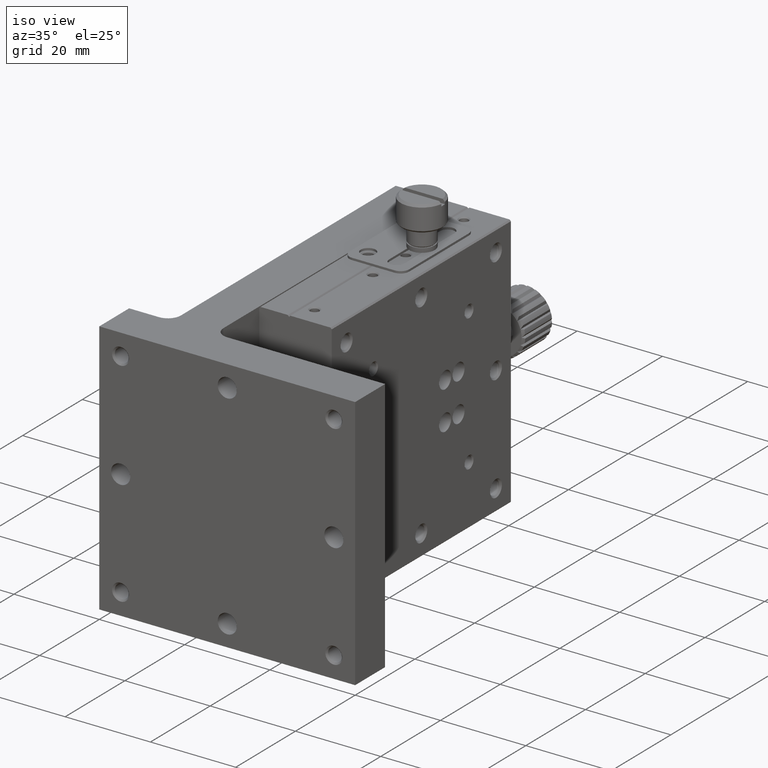
[diagram: clean part render]
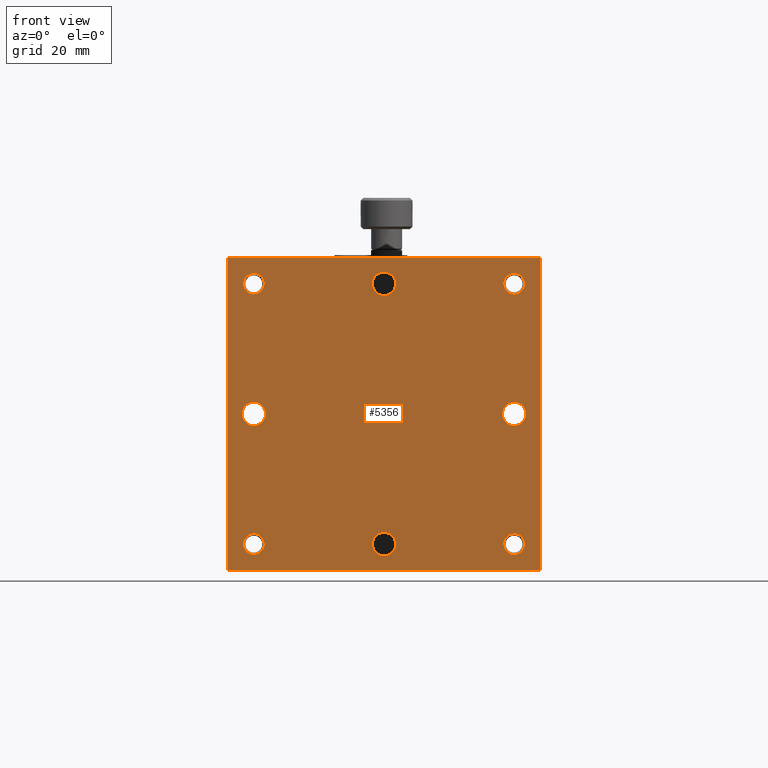
[diagram: tour spotlight — one face highlighted and labeled with its STEP entity id]
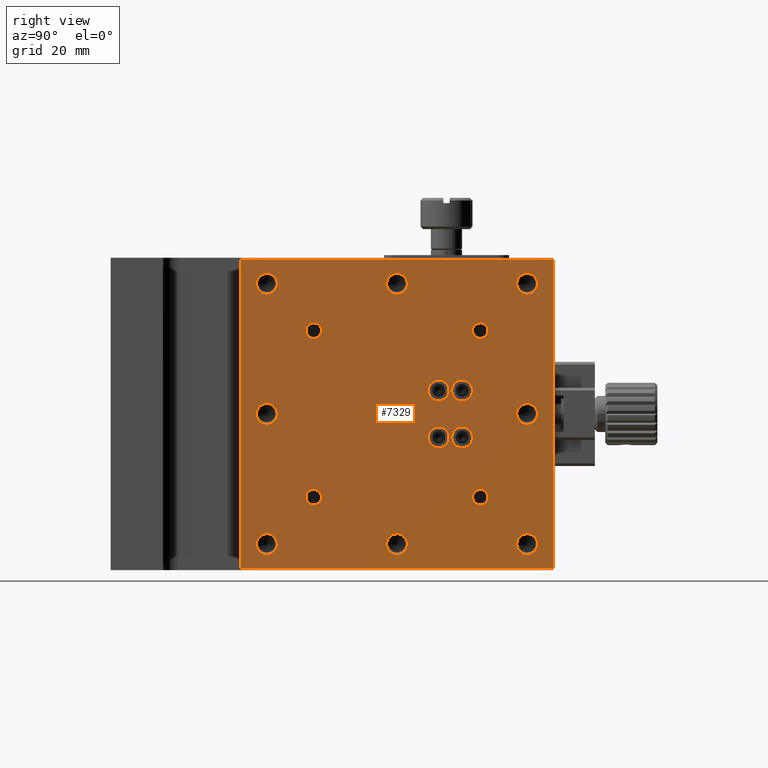
[diagram: tour spotlight — one face highlighted and labeled with its STEP entity id]
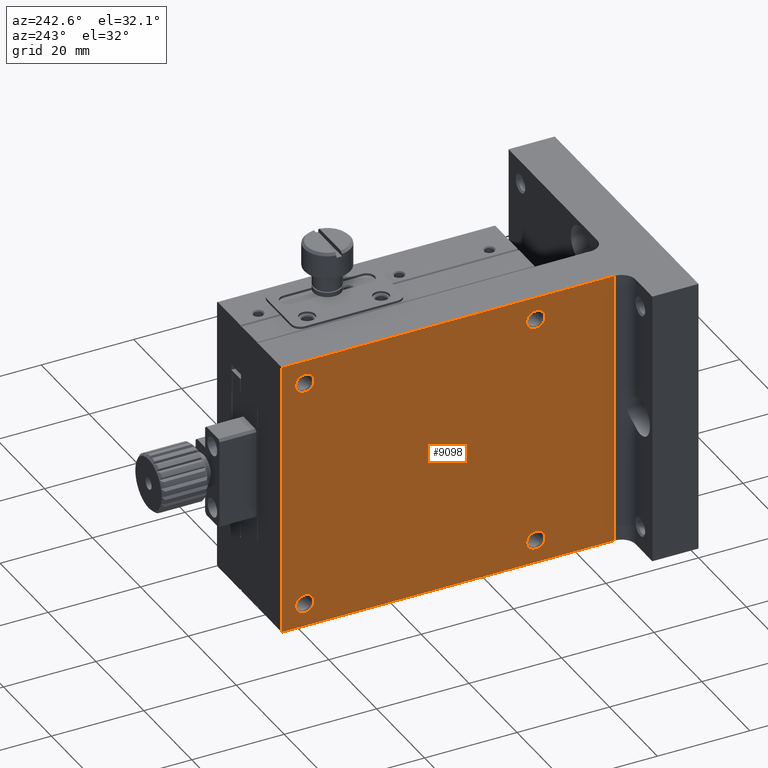
[diagram: tour spotlight — one face highlighted and labeled with its STEP entity id]
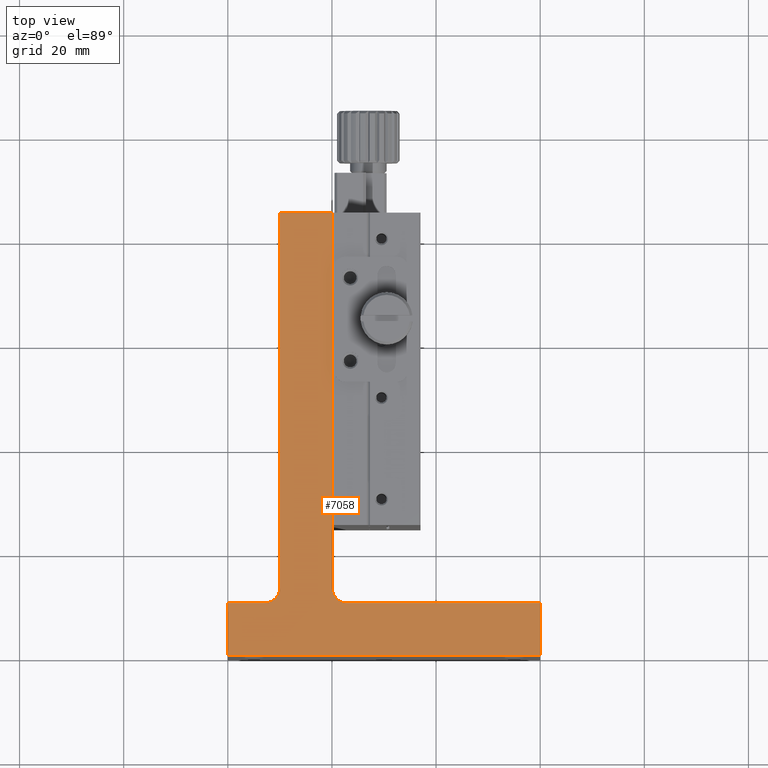
[diagram: tour spotlight — one face highlighted and labeled with its STEP entity id]
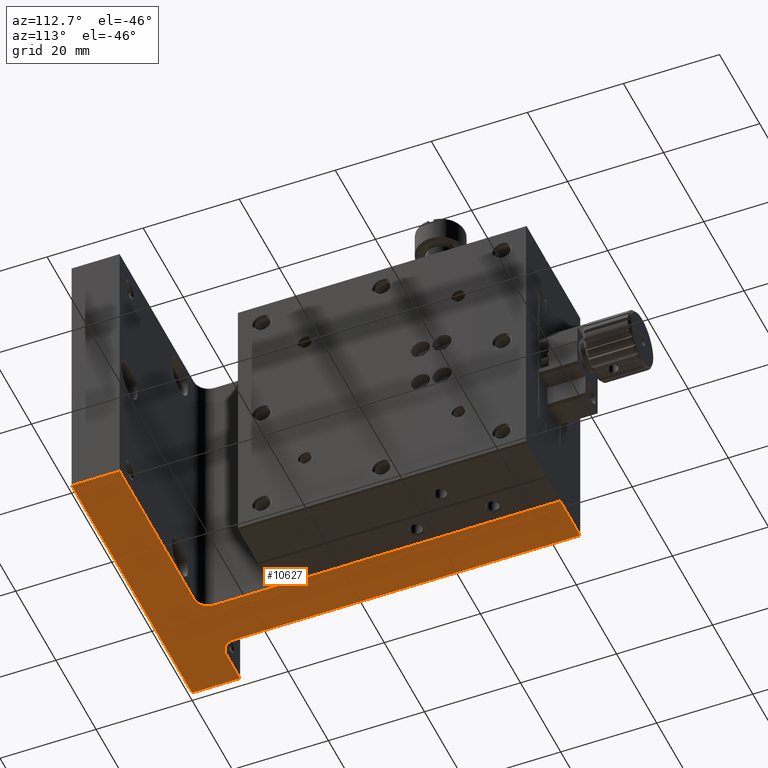
[diagram: tour spotlight — one face highlighted and labeled with its STEP entity id]
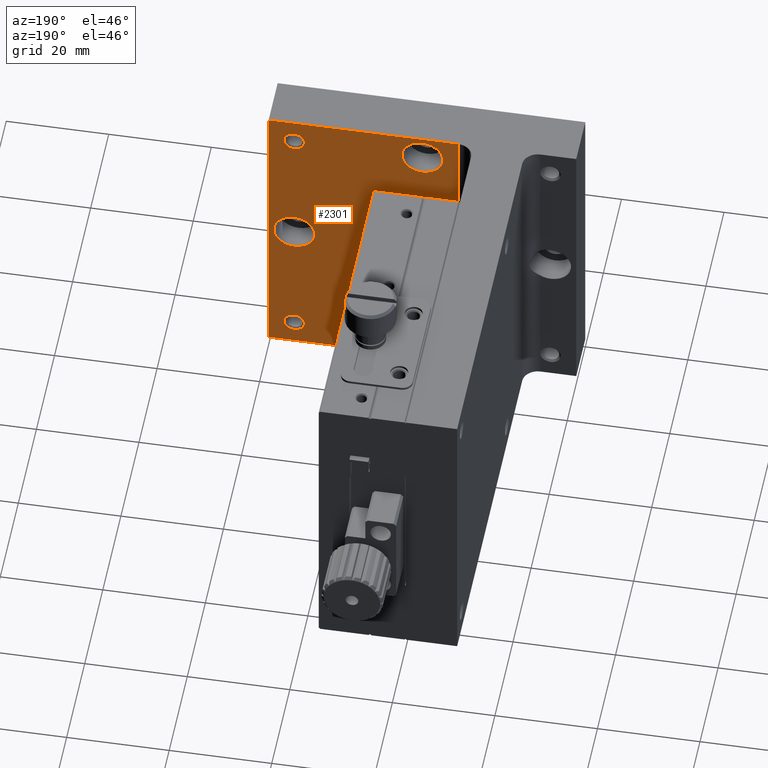
[diagram: tour spotlight — one face highlighted and labeled with its STEP entity id]
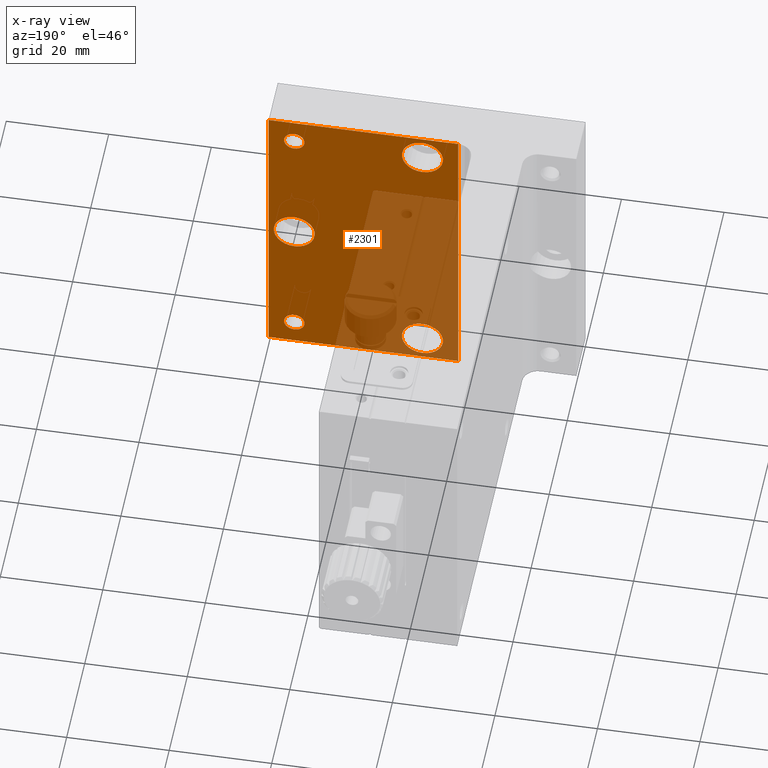
[diagram: x-ray of the same camera — body ghosted, this tour face saturated]
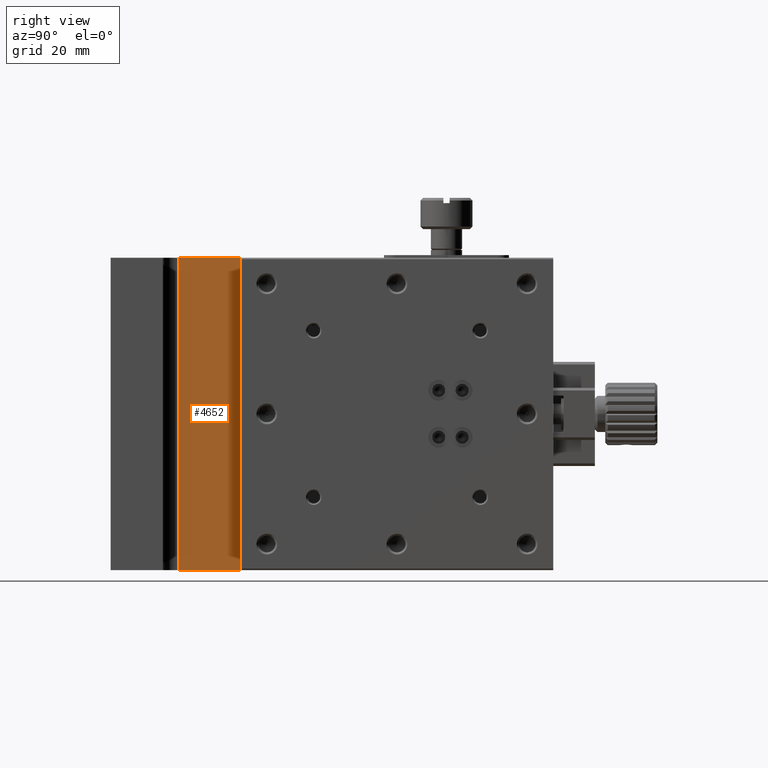
[diagram: tour spotlight — one face highlighted and labeled with its STEP entity id]
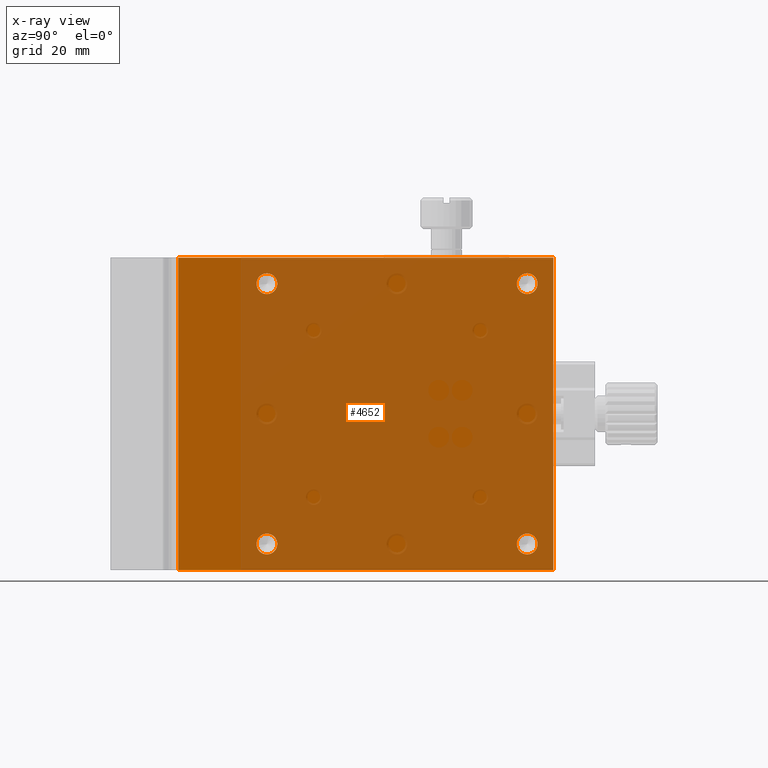
[diagram: x-ray of the same camera — body ghosted, this tour face saturated]
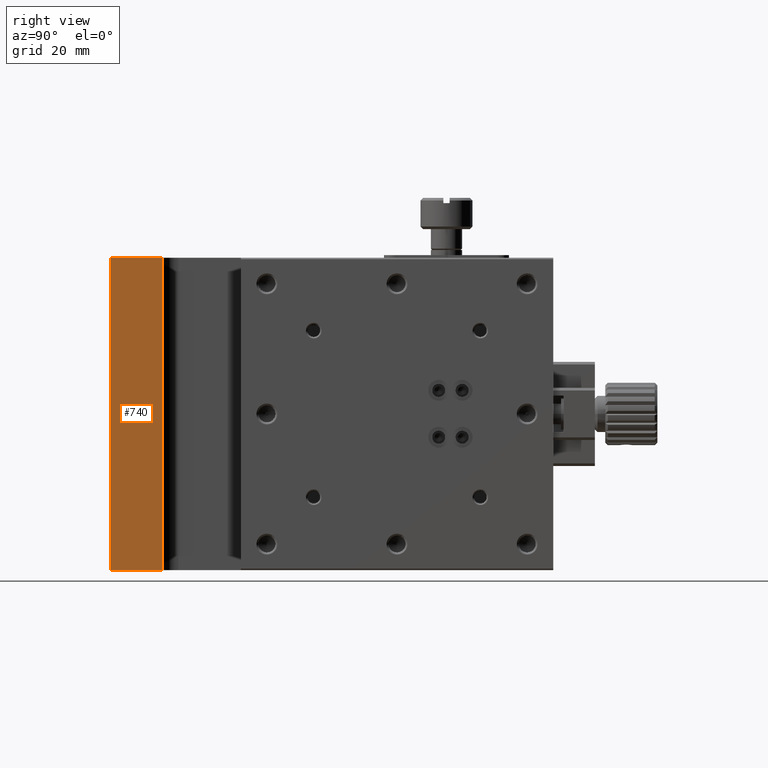
[diagram: tour spotlight — one face highlighted and labeled with its STEP entity id]
A machine part: a face-by-face anatomy tour. The part has 407 B-rep faces; the first image is the clean iso view, then the 8 largest visible faces are spotlighted one at a time (largest first), each with its STEP entity span.

Face 1 — front view, entity #5356. In plain terms, the highlighted planar face has unit normal (0, -1, 0).
Definition (entity closure, byte-faithful):
#163 = DIRECTION ( 'NONE',  ( 0.000000000000000000, -1.000000000000000000, 0.000000000000000000 ) ) ;
#205 = DIRECTION ( 'NONE',  ( 0.000000000000000000, 0.000000000000000000, -1.000000000000000000 ) ) ;
#224 = DIRECTION ( 'NONE',  ( 1.000000000000000000, 0.000000000000000000, -0.000000000000000000 ) ) ;
#242 = ORIENTED_EDGE ( 'NONE', *, *, #1672, .T. ) ;
#320 = CARTESIAN_POINT ( 'NONE',  ( 60.00000000000000000, 0.000000000000000000, 0.000000000000000000 ) ) ;
#342 = CARTESIAN_POINT ( 'NONE',  ( 30.00000000000000000, 0.000000000000000000, -7.250000000000000000 ) ) ;
#370 = AXIS2_PLACEMENT_3D ( 'NONE', #8587, #2564, #4314 ) ;
#456 = AXIS2_PLACEMENT_3D ( 'NONE', #2879, #3039, #4567 ) ;
#668 = DIRECTION ( 'NONE',  ( 0.000000000000000000, 0.000000000000000000, -1.000000000000000000 ) ) ;
#673 = CIRCLE ( 'NONE', #3115, 2.250000000000001776 ) ;
#729 = FACE_BOUND ( 'NONE', #7141, .T. ) ;
#799 = CARTESIAN_POINT ( 'NONE',  ( 5.000000000000000000, 0.000000000000000000, -5.000000000000000000 ) ) ;
#975 = PLANE ( 'NONE',  #2035 ) ;
#1137 = CARTESIAN_POINT ( 'NONE',  ( 0.000000000000000000, 0.000000000000000000, -60.00000000000000000 ) ) ;
#1382 = EDGE_CURVE ( 'NONE', #10114, #10114, #5047, .T. ) ;
#1582 = DIRECTION ( 'NONE',  ( 0.000000000000000000, 0.000000000000000000, 1.000000000000000000 ) ) ;
#1598 = FACE_BOUND ( 'NONE', #7076, .T. ) ;
#1618 = EDGE_CURVE ( 'NONE', #6357, #8400, #4844, .T. ) ;
#1638 = CARTESIAN_POINT ( 'NONE',  ( 55.00000000000000000, 5.684341886080801487E-11, -55.00000000000000000 ) ) ;
#1672 = EDGE_CURVE ( 'NONE', #5439, #5439, #8347, .T. ) ;
#1716 = CARTESIAN_POINT ( 'NONE',  ( 0.000000000000000000, 0.000000000000000000, 0.000000000000000000 ) ) ;
#1851 = CARTESIAN_POINT ( 'NONE',  ( 23.00000000000000000, 0.000000000000000000, 0.000000000000000000 ) ) ;
#1899 = EDGE_LOOP ( 'NONE', ( #5753 ) ) ;
#1988 = EDGE_LOOP ( 'NONE', ( #7401 ) ) ;
#1992 = EDGE_LOOP ( 'NONE', ( #4654, #8434, #3396, #5308 ) ) ;
#2035 = AXIS2_PLACEMENT_3D ( 'NONE', #1137, #163, #5919 ) ;
#2123 = EDGE_CURVE ( 'NONE', #6357, #2866, #6979, .T. ) ;
#2197 = CARTESIAN_POINT ( 'NONE',  ( 0.000000000000000000, 0.000000000000000000, -60.00000000000000000 ) ) ;
#2327 = VECTOR ( 'NONE', #668, 1000.000000000000000 ) ;
#2361 = DIRECTION ( 'NONE',  ( 0.000000000000000000, 0.000000000000000000, -1.000000000000000000 ) ) ;
#2564 = DIRECTION ( 'NONE',  ( -0.000000000000000000, 1.000000000000000000, -0.000000000000000000 ) ) ;
#2659 = DIRECTION ( 'NONE',  ( 0.000000000000000000, 0.000000000000000000, -1.000000000000000000 ) ) ;
#2866 = VERTEX_POINT ( 'NONE', #10488 ) ;
#2879 = CARTESIAN_POINT ( 'NONE',  ( 55.00000000000000000, 0.000000000000000000, -5.000000000000000000 ) ) ;
#3039 = DIRECTION ( 'NONE',  ( -0.000000000000000000, 1.000000000000000000, -0.000000000000000000 ) ) ;
#3058 = EDGE_CURVE ( 'NONE', #8400, #10402, #6629, .T. ) ;
#3062 = CARTESIAN_POINT ( 'NONE',  ( 60.00000000000000000, 0.000000000000000000, -60.00000000000000000 ) ) ;
#3115 = AXIS2_PLACEMENT_3D ( 'NONE', #7241, #6433, #9748 ) ;
#3232 = FACE_BOUND ( 'NONE', #1899, .T. ) ;
#3396 = ORIENTED_EDGE ( 'NONE', *, *, #3058, .F. ) ;
#3407 = EDGE_CURVE ( 'NONE', #10402, #2866, #4800, .T. ) ;
#3429 = VERTEX_POINT ( 'NONE', #6729 ) ;
#3606 = CIRCLE ( 'NONE', #9320, 1.999999999959527264 ) ;
#3750 = DIRECTION ( 'NONE',  ( -0.000000000000000000, 1.000000000000000000, -0.000000000000000000 ) ) ;
#4089 = VERTEX_POINT ( 'NONE', #5976 ) ;
#4235 = EDGE_CURVE ( 'NONE', #4089, #4089, #5822, .T. ) ;
#4250 = FACE_BOUND ( 'NONE', #1988, .T. ) ;
#4304 = VERTEX_POINT ( 'NONE', #7381 ) ;
#4314 = DIRECTION ( 'NONE',  ( 0.000000000000000000, 0.000000000000000000, -1.000000000000000000 ) ) ;
#4355 = EDGE_CURVE ( 'NONE', #4304, #4304, #8421, .T. ) ;
#4371 = VECTOR ( 'NONE', #1582, 1000.000000000000000 ) ;
#4408 = VECTOR ( 'NONE', #224, 1000.000000000000000 ) ;
#4540 = EDGE_CURVE ( 'NONE', #4944, #4944, #5316, .T. ) ;
#4547 = AXIS2_PLACEMENT_3D ( 'NONE', #4558, #3750, #10350 ) ;
#4555 = VECTOR ( 'NONE', #7733, 1000.000000000000000 ) ;
#4558 = CARTESIAN_POINT ( 'NONE',  ( 55.00000000000000000, 0.000000000000000000, -30.00000000000000000 ) ) ;
#4567 = DIRECTION ( 'NONE',  ( 0.000000000000000000, 0.000000000000000000, -1.000000000000000000 ) ) ;
#4654 = ORIENTED_EDGE ( 'NONE', *, *, #2123, .T. ) ;
#4800 = LINE ( 'NONE', #3062, #2327 ) ;
#4834 = VERTEX_POINT ( 'NONE', #7422 ) ;
#4844 = LINE ( 'NONE', #7223, #4371 ) ;
#4909 = FACE_BOUND ( 'NONE', #10294, .T. ) ;
#4944 = VERTEX_POINT ( 'NONE', #7488 ) ;
#5047 = CIRCLE ( 'NONE', #370, 2.250000000000000444 ) ;
#5265 = EDGE_LOOP ( 'NONE', ( #8393 ) ) ;
#5308 = ORIENTED_EDGE ( 'NONE', *, *, #1618, .F. ) ;
#5316 = CIRCLE ( 'NONE', #7560, 2.000000000061845640 ) ;
#5325 = ORIENTED_EDGE ( 'NONE', *, *, #9237, .T. ) ;
#5328 = EDGE_CURVE ( 'NONE', #3429, #3429, #3606, .T. ) ;
#5356 = ADVANCED_FACE ( 'NONE', ( #8165, #729, #7348, #8220, #10670, #3232, #1598, #4909, #4250 ), #975, .T. ) ;
#5439 = VERTEX_POINT ( 'NONE', #8642 ) ;
#5753 = ORIENTED_EDGE ( 'NONE', *, *, #4540, .T. ) ;
#5813 = DIRECTION ( 'NONE',  ( -0.000000000000000000, 1.000000000000000000, -0.000000000000000000 ) ) ;
#5822 = CIRCLE ( 'NONE', #8768, 2.250000000000001776 ) ;
#5909 = ORIENTED_EDGE ( 'NONE', *, *, #5328, .T. ) ;
#5919 = DIRECTION ( 'NONE',  ( 0.000000000000000000, -0.000000000000000000, -1.000000000000000000 ) ) ;
#5976 = CARTESIAN_POINT ( 'NONE',  ( 30.00000000000000000, 0.000000000000000000, -57.25000000000000000 ) ) ;
#6167 = CARTESIAN_POINT ( 'NONE',  ( 23.00000000000000000, 0.000000000000000000, -60.00000000000000000 ) ) ;
#6357 = VERTEX_POINT ( 'NONE', #2197 ) ;
#6433 = DIRECTION ( 'NONE',  ( -0.000000000000000000, 1.000000000000000000, -0.000000000000000000 ) ) ;
#6629 = LINE ( 'NONE', #1851, #4408 ) ;
#6729 = CARTESIAN_POINT ( 'NONE',  ( 5.000000000000009770, 5.684341886080801487E-11, -56.99999999995952749 ) ) ;
#6826 = ORIENTED_EDGE ( 'NONE', *, *, #8712, .T. ) ;
#6945 = EDGE_LOOP ( 'NONE', ( #242 ) ) ;
#6979 = LINE ( 'NONE', #6167, #4555 ) ;
#7076 = EDGE_LOOP ( 'NONE', ( #5909 ) ) ;
#7141 = EDGE_LOOP ( 'NONE', ( #7548 ) ) ;
#7161 = VERTEX_POINT ( 'NONE', #10471 ) ;
#7223 = CARTESIAN_POINT ( 'NONE',  ( 0.000000000000000000, 0.000000000000000000, -60.00000000000000000 ) ) ;
#7241 = CARTESIAN_POINT ( 'NONE',  ( 5.000000000000000000, 0.000000000000000000, -30.00000000000000000 ) ) ;
#7348 = FACE_BOUND ( 'NONE', #5265, .T. ) ;
#7381 = CARTESIAN_POINT ( 'NONE',  ( 55.00000000000000000, 0.000000000000000000, -7.000000000061845640 ) ) ;
#7401 = ORIENTED_EDGE ( 'NONE', *, *, #4355, .T. ) ;
#7422 = CARTESIAN_POINT ( 'NONE',  ( 55.00000000000000000, 5.684341886080801487E-11, -56.99999999995952749 ) ) ;
#7488 = CARTESIAN_POINT ( 'NONE',  ( 5.000000000000000000, 0.000000000000000000, -7.000000000061845640 ) ) ;
#7548 = ORIENTED_EDGE ( 'NONE', *, *, #1382, .T. ) ;
#7560 = AXIS2_PLACEMENT_3D ( 'NONE', #799, #9387, #205 ) ;
#7733 = DIRECTION ( 'NONE',  ( 1.000000000000000000, 0.000000000000000000, -0.000000000000000000 ) ) ;
#8165 = FACE_OUTER_BOUND ( 'NONE', #1992, .T. ) ;
#8220 = FACE_BOUND ( 'NONE', #6945, .T. ) ;
#8347 = CIRCLE ( 'NONE', #4547, 2.250000000000001776 ) ;
#8393 = ORIENTED_EDGE ( 'NONE', *, *, #4235, .T. ) ;
#8400 = VERTEX_POINT ( 'NONE', #1716 ) ;
#8421 = CIRCLE ( 'NONE', #456, 2.000000000061845640 ) ;
#8434 = ORIENTED_EDGE ( 'NONE', *, *, #3407, .F. ) ;
#8521 = CARTESIAN_POINT ( 'NONE',  ( 30.00000000000000000, 0.000000000000000000, -55.00000000000000000 ) ) ;
#8587 = CARTESIAN_POINT ( 'NONE',  ( 30.00000000000000000, 0.000000000000000000, -5.000000000000000000 ) ) ;
#8642 = CARTESIAN_POINT ( 'NONE',  ( 55.00000000000000000, 0.000000000000000000, -32.25000000000000000 ) ) ;
#8712 = EDGE_CURVE ( 'NONE', #7161, #7161, #673, .T. ) ;
#8768 = AXIS2_PLACEMENT_3D ( 'NONE', #8521, #10098, #2659 ) ;
#9042 = EDGE_LOOP ( 'NONE', ( #6826 ) ) ;
#9122 = DIRECTION ( 'NONE',  ( 0.000000000000000000, 0.000000000000000000, -1.000000000000000000 ) ) ;
#9237 = EDGE_CURVE ( 'NONE', #4834, #4834, #10389, .T. ) ;
#9320 = AXIS2_PLACEMENT_3D ( 'NONE', #9798, #9690, #2361 ) ;
#9387 = DIRECTION ( 'NONE',  ( -0.000000000000000000, 1.000000000000000000, -0.000000000000000000 ) ) ;
#9690 = DIRECTION ( 'NONE',  ( -0.000000000000000000, 1.000000000000000000, -0.000000000000000000 ) ) ;
#9748 = DIRECTION ( 'NONE',  ( 0.000000000000000000, 0.000000000000000000, -1.000000000000000000 ) ) ;
#9798 = CARTESIAN_POINT ( 'NONE',  ( 5.000000000000009770, 5.684341886080801487E-11, -55.00000000000000000 ) ) ;
#10039 = AXIS2_PLACEMENT_3D ( 'NONE', #1638, #5813, #9122 ) ;
#10098 = DIRECTION ( 'NONE',  ( -0.000000000000000000, 1.000000000000000000, -0.000000000000000000 ) ) ;
#10114 = VERTEX_POINT ( 'NONE', #342 ) ;
#10294 = EDGE_LOOP ( 'NONE', ( #5325 ) ) ;
#10350 = DIRECTION ( 'NONE',  ( 0.000000000000000000, 0.000000000000000000, -1.000000000000000000 ) ) ;
#10389 = CIRCLE ( 'NONE', #10039, 1.999999999959527264 ) ;
#10402 = VERTEX_POINT ( 'NONE', #320 ) ;
#10471 = CARTESIAN_POINT ( 'NONE',  ( 5.000000000000000000, 0.000000000000000000, -32.25000000000000000 ) ) ;
#10488 = CARTESIAN_POINT ( 'NONE',  ( 60.00000000000000000, 0.000000000000000000, -60.00000000000000000 ) ) ;
#10670 = FACE_BOUND ( 'NONE', #9042, .T. ) ;

Face 2 — right view, entity #7329. In plain terms, the highlighted planar face has unit normal (-1, 0, 0).
Definition (entity closure, byte-faithful):
#39 = CARTESIAN_POINT ( 'NONE',  ( 37.00000000000000000, 63.00000000000000000, -25.49999999999999645 ) ) ;
#74 = VERTEX_POINT ( 'NONE', #8424 ) ;
#99 = CARTESIAN_POINT ( 'NONE',  ( 37.00000000000000000, 30.00000000000000711, -3.000000000042739146 ) ) ;
#121 = CARTESIAN_POINT ( 'NONE',  ( 37.00000000000000000, 80.00000000000000000, -3.000000000042739146 ) ) ;
#292 = FACE_BOUND ( 'NONE', #4125, .T. ) ;
#351 = FACE_BOUND ( 'NONE', #4067, .T. ) ;
#359 = EDGE_CURVE ( 'NONE', #4265, #4265, #9741, .T. ) ;
#494 = DIRECTION ( 'NONE',  ( 0.000000000000000000, 0.000000000000000000, 1.000000000000000000 ) ) ;
#528 = DIRECTION ( 'NONE',  ( 0.000000000000000000, 0.000000000000000000, 1.000000000000000000 ) ) ;
#618 = ORIENTED_EDGE ( 'NONE', *, *, #3673, .F. ) ;
#620 = DIRECTION ( 'NONE',  ( 1.000000000000000000, 0.000000000000000000, 0.000000000000000000 ) ) ;
#643 = CARTESIAN_POINT ( 'NONE',  ( 36.99999999994315658, 30.00000000000000711, -28.00000000002000178 ) ) ;
#648 = ORIENTED_EDGE ( 'NONE', *, *, #8841, .F. ) ;
#683 = EDGE_LOOP ( 'NONE', ( #4697 ) ) ;
#712 = DIRECTION ( 'NONE',  ( 1.000000000000000000, 0.000000000000000000, 0.000000000000000000 ) ) ;
#720 = EDGE_LOOP ( 'NONE', ( #1955, #7693, #4485, #1743 ) ) ;
#735 = ORIENTED_EDGE ( 'NONE', *, *, #10643, .F. ) ;
#793 = EDGE_CURVE ( 'NONE', #74, #74, #6796, .T. ) ;
#1010 = EDGE_CURVE ( 'NONE', #5176, #5176, #3523, .T. ) ;
#1034 = CARTESIAN_POINT ( 'NONE',  ( 37.00000000000000000, 63.00000000000000000, -27.49999999999999645 ) ) ;
#1063 = AXIS2_PLACEMENT_3D ( 'NONE', #3986, #712, #4041 ) ;
#1205 = ORIENTED_EDGE ( 'NONE', *, *, #4746, .F. ) ;
#1298 = AXIS2_PLACEMENT_3D ( 'NONE', #1695, #5004, #5334 ) ;
#1440 = DIRECTION ( 'NONE',  ( 0.000000000000000000, 0.000000000000000000, 1.000000000000000000 ) ) ;
#1451 = ORIENTED_EDGE ( 'NONE', *, *, #6051, .F. ) ;
#1467 = CARTESIAN_POINT ( 'NONE',  ( 37.00000000000000000, 55.00000000000000711, -3.000000000042739146 ) ) ;
#1475 = EDGE_LOOP ( 'NONE', ( #3640 ) ) ;
#1617 = CARTESIAN_POINT ( 'NONE',  ( 36.99999999999999289, 25.00000000000000711, -59.69999999999999574 ) ) ;
#1647 = DIRECTION ( 'NONE',  ( 1.000000000000000000, 0.000000000000000000, 0.000000000000000000 ) ) ;
#1652 = EDGE_CURVE ( 'NONE', #8700, #8700, #5925, .T. ) ;
#1664 = VECTOR ( 'NONE', #9931, 1000.000000000000000 ) ;
#1695 = CARTESIAN_POINT ( 'NONE',  ( 37.00000000000000000, 63.00000000000000000, -34.49999999999999289 ) ) ;
#1703 = DIRECTION ( 'NONE',  ( 1.000000000000000000, 0.000000000000000000, 0.000000000000000000 ) ) ;
#1743 = ORIENTED_EDGE ( 'NONE', *, *, #8691, .F. ) ;
#1762 = EDGE_LOOP ( 'NONE', ( #5982 ) ) ;
#1891 = AXIS2_PLACEMENT_3D ( 'NONE', #10563, #5506, #10396 ) ;
#1955 = ORIENTED_EDGE ( 'NONE', *, *, #3824, .F. ) ;
#2075 = ORIENTED_EDGE ( 'NONE', *, *, #2507, .F. ) ;
#2103 = CARTESIAN_POINT ( 'NONE',  ( 36.99999999994315658, 30.00000000000000711, -54.99999999999999289 ) ) ;
#2104 = EDGE_CURVE ( 'NONE', #5390, #5390, #7314, .T. ) ;
#2132 = VERTEX_POINT ( 'NONE', #4477 ) ;
#2198 = EDGE_CURVE ( 'NONE', #2132, #2132, #8198, .T. ) ;
#2211 = ORIENTED_EDGE ( 'NONE', *, *, #793, .F. ) ;
#2333 = EDGE_LOOP ( 'NONE', ( #2851 ) ) ;
#2376 = DIRECTION ( 'NONE',  ( 1.227396053628219999E-16, 0.000000000000000000, 1.000000000000000000 ) ) ;
#2430 = DIRECTION ( 'NONE',  ( 0.000000000000000000, 0.000000000000000000, -1.000000000000000000 ) ) ;
#2507 = EDGE_CURVE ( 'NONE', #6099, #6099, #8891, .T. ) ;
#2540 = CARTESIAN_POINT ( 'NONE',  ( 36.99999999994315658, 71.00000000000001421, -12.50000000004546763 ) ) ;
#2628 = AXIS2_PLACEMENT_3D ( 'NONE', #7238, #6376, #3231 ) ;
#2629 = VERTEX_POINT ( 'NONE', #7067 ) ;
#2643 = DIRECTION ( 'NONE',  ( 1.000000000000000000, -0.000000000000000000, -0.000000000000000000 ) ) ;
#2688 = FACE_OUTER_BOUND ( 'NONE', #720, .T. ) ;
#2851 = ORIENTED_EDGE ( 'NONE', *, *, #1010, .F. ) ;
#2855 = FACE_BOUND ( 'NONE', #5808, .T. ) ;
#2942 = CARTESIAN_POINT ( 'NONE',  ( 37.00000000000000000, 80.00000000000000000, -4.999999999999992895 ) ) ;
#2944 = CIRCLE ( 'NONE', #9868, 1.999999999979990006 ) ;
#2968 = CARTESIAN_POINT ( 'NONE',  ( 36.99999999999999289, 85.00000000000000000, -59.69999999999999574 ) ) ;
#3015 = CARTESIAN_POINT ( 'NONE',  ( 36.99999999999999289, 25.00000000000000711, -59.69999999999999574 ) ) ;
#3033 = CIRCLE ( 'NONE', #1298, 2.000000000000001776 ) ;
#3048 = DIRECTION ( 'NONE',  ( -0.000000000000000000, 1.000000000000000000, -0.000000000000000000 ) ) ;
#3145 = CARTESIAN_POINT ( 'NONE',  ( 37.00000000000000000, 39.00000000000000711, -45.99999999999999289 ) ) ;
#3155 = VERTEX_POINT ( 'NONE', #8899 ) ;
#3231 = DIRECTION ( 'NONE',  ( 0.000000000000000000, 0.000000000000000000, 1.000000000000000000 ) ) ;
#3267 = LINE ( 'NONE', #4841, #1664 ) ;
#3273 = CARTESIAN_POINT ( 'NONE',  ( 36.99999999994315658, 30.00000000000000711, -29.99999999999999289 ) ) ;
#3369 = VERTEX_POINT ( 'NONE', #99 ) ;
#3379 = VERTEX_POINT ( 'NONE', #8206 ) ;
#3454 = AXIS2_PLACEMENT_3D ( 'NONE', #3015, #8872, #6271 ) ;
#3523 = CIRCLE ( 'NONE', #5250, 1.499999999954525487 ) ;
#3568 = FACE_BOUND ( 'NONE', #3633, .T. ) ;
#3633 = EDGE_LOOP ( 'NONE', ( #648 ) ) ;
#3640 = ORIENTED_EDGE ( 'NONE', *, *, #9198, .F. ) ;
#3643 = CIRCLE ( 'NONE', #1891, 1.999999999979990006 ) ;
#3673 = EDGE_CURVE ( 'NONE', #9831, #9831, #3033, .T. ) ;
#3681 = FACE_BOUND ( 'NONE', #2333, .T. ) ;
#3824 = EDGE_CURVE ( 'NONE', #9671, #2629, #4786, .T. ) ;
#3898 = CARTESIAN_POINT ( 'NONE',  ( 36.99999999994315658, 71.00000000000001421, -13.99999999999999289 ) ) ;
#3970 = EDGE_LOOP ( 'NONE', ( #9115 ) ) ;
#3986 = CARTESIAN_POINT ( 'NONE',  ( 36.99999999994315658, 55.00000000000000711, -54.99999999999999289 ) ) ;
#4001 = PLANE ( 'NONE',  #3454 ) ;
#4041 = DIRECTION ( 'NONE',  ( 0.000000000000000000, 0.000000000000000000, 1.000000000000000000 ) ) ;
#4067 = EDGE_LOOP ( 'NONE', ( #2075 ) ) ;
#4078 = EDGE_CURVE ( 'NONE', #6280, #6543, #3267, .T. ) ;
#4125 = EDGE_LOOP ( 'NONE', ( #10406 ) ) ;
#4158 = CIRCLE ( 'NONE', #7605, 1.999999999957263297 ) ;
#4207 = AXIS2_PLACEMENT_3D ( 'NONE', #9149, #7408, #9048 ) ;
#4265 = VERTEX_POINT ( 'NONE', #121 ) ;
#4435 = FACE_BOUND ( 'NONE', #9807, .T. ) ;
#4462 = CARTESIAN_POINT ( 'NONE',  ( 37.00000000000000000, 39.00000000000000711, -44.50000000002773248 ) ) ;
#4477 = CARTESIAN_POINT ( 'NONE',  ( 37.00000000000000000, 67.50000000000000000, -27.49999999999999645 ) ) ;
#4485 = ORIENTED_EDGE ( 'NONE', *, *, #4078, .F. ) ;
#4492 = DIRECTION ( 'NONE',  ( 1.000000000000000000, -0.000000000000000000, -0.000000000000000000 ) ) ;
#4697 = ORIENTED_EDGE ( 'NONE', *, *, #2198, .F. ) ;
#4746 = EDGE_CURVE ( 'NONE', #3379, #3379, #4812, .T. ) ;
#4759 = LINE ( 'NONE', #2968, #9524 ) ;
#4786 = LINE ( 'NONE', #6203, #9271 ) ;
#4812 = CIRCLE ( 'NONE', #5670, 2.000000000002728928 ) ;
#4841 = CARTESIAN_POINT ( 'NONE',  ( 36.99999999999999289, 25.00000000000000711, -59.69999999999999574 ) ) ;
#4964 = EDGE_LOOP ( 'NONE', ( #1451 ) ) ;
#4972 = DIRECTION ( 'NONE',  ( 1.000000000000000000, -0.000000000000000000, -0.000000000000000000 ) ) ;
#5004 = DIRECTION ( 'NONE',  ( 1.000000000000000000, -0.000000000000000000, -0.000000000000000000 ) ) ;
#5057 = ORIENTED_EDGE ( 'NONE', *, *, #2104, .F. ) ;
#5080 = ORIENTED_EDGE ( 'NONE', *, *, #1652, .F. ) ;
#5176 = VERTEX_POINT ( 'NONE', #5880 ) ;
#5191 = FACE_BOUND ( 'NONE', #10201, .T. ) ;
#5242 = FACE_BOUND ( 'NONE', #1475, .T. ) ;
#5250 = AXIS2_PLACEMENT_3D ( 'NONE', #8657, #7132, #1440 ) ;
#5286 = CARTESIAN_POINT ( 'NONE',  ( 37.00000000000000000, 67.50000000000000000, -36.50000000000000000 ) ) ;
#5296 = FACE_BOUND ( 'NONE', #4964, .T. ) ;
#5323 = VERTEX_POINT ( 'NONE', #4462 ) ;
#5334 = DIRECTION ( 'NONE',  ( 0.000000000000000000, 0.000000000000000000, -1.000000000000000000 ) ) ;
#5347 = AXIS2_PLACEMENT_3D ( 'NONE', #3145, #8128, #9914 ) ;
#5353 = DIRECTION ( 'NONE',  ( 0.000000000000000000, 0.000000000000000000, -1.000000000000000000 ) ) ;
#5390 = VERTEX_POINT ( 'NONE', #5286 ) ;
#5506 = DIRECTION ( 'NONE',  ( 1.000000000000000000, 0.000000000000000000, 0.000000000000000000 ) ) ;
#5518 = DIRECTION ( 'NONE',  ( 1.000000000000000000, 0.000000000000000000, 0.000000000000000000 ) ) ;
#5657 = EDGE_LOOP ( 'NONE', ( #2211 ) ) ;
#5664 = DIRECTION ( 'NONE',  ( 0.000000000000000000, 0.000000000000000000, 1.000000000000000000 ) ) ;
#5670 = AXIS2_PLACEMENT_3D ( 'NONE', #2103, #5518, #528 ) ;
#5732 = EDGE_LOOP ( 'NONE', ( #618 ) ) ;
#5774 = CARTESIAN_POINT ( 'NONE',  ( 37.00000000000000000, 55.00000000000000711, -5.000000000000002665 ) ) ;
#5808 = EDGE_LOOP ( 'NONE', ( #5057 ) ) ;
#5866 = DIRECTION ( 'NONE',  ( 1.000000000000000000, 0.000000000000000000, 0.000000000000000000 ) ) ;
#5880 = CARTESIAN_POINT ( 'NONE',  ( 36.99999999994315658, 39.00000000000000711, -12.50000000004546763 ) ) ;
#5925 = CIRCLE ( 'NONE', #1063, 2.000000000002728928 ) ;
#5982 = ORIENTED_EDGE ( 'NONE', *, *, #359, .F. ) ;
#6008 = EDGE_LOOP ( 'NONE', ( #5080 ) ) ;
#6038 = EDGE_CURVE ( 'NONE', #6543, #9671, #8237, .T. ) ;
#6051 = EDGE_CURVE ( 'NONE', #5323, #5323, #10018, .T. ) ;
#6092 = CIRCLE ( 'NONE', #2628, 1.999999999957263297 ) ;
#6099 = VERTEX_POINT ( 'NONE', #9413 ) ;
#6113 = EDGE_CURVE ( 'NONE', #7053, #7053, #8274, .T. ) ;
#6203 = CARTESIAN_POINT ( 'NONE',  ( 37.00000000000000000, 25.00000000000000711, -0.3000000000000150879 ) ) ;
#6271 = DIRECTION ( 'NONE',  ( -1.227396053628219999E-16, -0.000000000000000000, -1.000000000000000000 ) ) ;
#6280 = VERTEX_POINT ( 'NONE', #6816 ) ;
#6299 = AXIS2_PLACEMENT_3D ( 'NONE', #9138, #1703, #8326 ) ;
#6326 = FACE_BOUND ( 'NONE', #5732, .T. ) ;
#6376 = DIRECTION ( 'NONE',  ( 1.000000000000000000, 0.000000000000000000, 0.000000000000000000 ) ) ;
#6543 = VERTEX_POINT ( 'NONE', #10673 ) ;
#6796 = CIRCLE ( 'NONE', #4207, 2.000000000002728928 ) ;
#6816 = CARTESIAN_POINT ( 'NONE',  ( 36.99999999999998579, 85.00000000000000000, -59.69999999999999574 ) ) ;
#6919 = FACE_BOUND ( 'NONE', #9764, .T. ) ;
#6974 = FACE_BOUND ( 'NONE', #683, .T. ) ;
#7028 = CARTESIAN_POINT ( 'NONE',  ( 37.00000000000000000, 67.50000000000000000, -25.49999999999999645 ) ) ;
#7053 = VERTEX_POINT ( 'NONE', #1034 ) ;
#7067 = CARTESIAN_POINT ( 'NONE',  ( 37.00000000000000000, 85.00000000000000000, -0.3000000000000140332 ) ) ;
#7132 = DIRECTION ( 'NONE',  ( 1.000000000000000000, 0.000000000000000000, 0.000000000000000000 ) ) ;
#7238 = CARTESIAN_POINT ( 'NONE',  ( 37.00000000000000000, 30.00000000000000711, -5.000000000000002665 ) ) ;
#7300 = CIRCLE ( 'NONE', #8516, 1.499999999954525487 ) ;
#7314 = CIRCLE ( 'NONE', #9052, 2.000000000000001776 ) ;
#7329 = ADVANCED_FACE ( 'NONE', ( #2688, #9314, #3568, #5191, #5242, #4435, #8547, #7728, #292, #6919, #351, #5296, #3681, #6974, #2855, #6326, #9743 ), #4001, .F. ) ;
#7408 = DIRECTION ( 'NONE',  ( 1.000000000000000000, 0.000000000000000000, 0.000000000000000000 ) ) ;
#7605 = AXIS2_PLACEMENT_3D ( 'NONE', #5774, #1647, #9998 ) ;
#7693 = ORIENTED_EDGE ( 'NONE', *, *, #6038, .F. ) ;
#7728 = FACE_BOUND ( 'NONE', #5657, .T. ) ;
#7883 = CARTESIAN_POINT ( 'NONE',  ( 36.99999999994315658, 55.00000000000000711, -52.99999999999726441 ) ) ;
#8036 = DIRECTION ( 'NONE',  ( 1.000000000000000000, 0.000000000000000000, 0.000000000000000000 ) ) ;
#8082 = VERTEX_POINT ( 'NONE', #643 ) ;
#8128 = DIRECTION ( 'NONE',  ( 1.000000000000000000, 0.000000000000000000, 0.000000000000000000 ) ) ;
#8186 = AXIS2_PLACEMENT_3D ( 'NONE', #2942, #8036, #494 ) ;
#8198 = CIRCLE ( 'NONE', #8534, 2.000000000000001776 ) ;
#8206 = CARTESIAN_POINT ( 'NONE',  ( 36.99999999994315658, 30.00000000000000711, -52.99999999999726441 ) ) ;
#8237 = LINE ( 'NONE', #1617, #10548 ) ;
#8274 = CIRCLE ( 'NONE', #10527, 2.000000000000001776 ) ;
#8297 = VERTEX_POINT ( 'NONE', #2540 ) ;
#8326 = DIRECTION ( 'NONE',  ( 0.000000000000000000, 0.000000000000000000, 1.000000000000000000 ) ) ;
#8424 = CARTESIAN_POINT ( 'NONE',  ( 36.99999999994315658, 80.00000000000000000, -52.99999999999726441 ) ) ;
#8516 = AXIS2_PLACEMENT_3D ( 'NONE', #3898, #620, #5664 ) ;
#8534 = AXIS2_PLACEMENT_3D ( 'NONE', #7028, #2643, #5353 ) ;
#8547 = FACE_BOUND ( 'NONE', #6008, .T. ) ;
#8552 = DIRECTION ( 'NONE',  ( 0.000000000000000000, 0.000000000000000000, -1.000000000000000000 ) ) ;
#8657 = CARTESIAN_POINT ( 'NONE',  ( 36.99999999994315658, 39.00000000000000711, -13.99999999999999289 ) ) ;
#8671 = EDGE_CURVE ( 'NONE', #3155, #3155, #3643, .T. ) ;
#8691 = EDGE_CURVE ( 'NONE', #2629, #6280, #4759, .T. ) ;
#8696 = ORIENTED_EDGE ( 'NONE', *, *, #10662, .F. ) ;
#8700 = VERTEX_POINT ( 'NONE', #7883 ) ;
#8762 = DIRECTION ( 'NONE',  ( -1.227396053628219999E-16, -0.000000000000000000, -1.000000000000000000 ) ) ;
#8841 = EDGE_CURVE ( 'NONE', #9659, #9659, #4158, .T. ) ;
#8872 = DIRECTION ( 'NONE',  ( -1.000000000000000000, 0.000000000000000000, 1.227396053628219999E-16 ) ) ;
#8891 = CIRCLE ( 'NONE', #6299, 1.499999999972259523 ) ;
#8899 = CARTESIAN_POINT ( 'NONE',  ( 36.99999999994315658, 80.00000000000000000, -28.00000000002000178 ) ) ;
#9017 = CARTESIAN_POINT ( 'NONE',  ( 37.00000000000000000, 63.00000000000000000, -36.50000000000000000 ) ) ;
#9048 = DIRECTION ( 'NONE',  ( 0.000000000000000000, 0.000000000000000000, 1.000000000000000000 ) ) ;
#9052 = AXIS2_PLACEMENT_3D ( 'NONE', #10289, #4492, #8552 ) ;
#9115 = ORIENTED_EDGE ( 'NONE', *, *, #6113, .F. ) ;
#9138 = CARTESIAN_POINT ( 'NONE',  ( 37.00000000000000000, 71.00000000000001421, -45.99999999999999289 ) ) ;
#9149 = CARTESIAN_POINT ( 'NONE',  ( 36.99999999994315658, 80.00000000000000000, -54.99999999999999289 ) ) ;
#9198 = EDGE_CURVE ( 'NONE', #8082, #8082, #2944, .T. ) ;
#9271 = VECTOR ( 'NONE', #3048, 1000.000000000000000 ) ;
#9314 = FACE_BOUND ( 'NONE', #1762, .T. ) ;
#9413 = CARTESIAN_POINT ( 'NONE',  ( 37.00000000000000000, 71.00000000000001421, -44.50000000002773248 ) ) ;
#9524 = VECTOR ( 'NONE', #8762, 1000.000000000000000 ) ;
#9643 = CARTESIAN_POINT ( 'NONE',  ( 36.99999999999999289, 25.00000000000000711, -0.3000000000000117018 ) ) ;
#9659 = VERTEX_POINT ( 'NONE', #1467 ) ;
#9671 = VERTEX_POINT ( 'NONE', #9643 ) ;
#9741 = CIRCLE ( 'NONE', #8186, 1.999999999957253749 ) ;
#9743 = FACE_BOUND ( 'NONE', #3970, .T. ) ;
#9764 = EDGE_LOOP ( 'NONE', ( #8696 ) ) ;
#9807 = EDGE_LOOP ( 'NONE', ( #1205 ) ) ;
#9831 = VERTEX_POINT ( 'NONE', #9017 ) ;
#9833 = DIRECTION ( 'NONE',  ( 0.000000000000000000, 0.000000000000000000, 1.000000000000000000 ) ) ;
#9868 = AXIS2_PLACEMENT_3D ( 'NONE', #3273, #5866, #9833 ) ;
#9914 = DIRECTION ( 'NONE',  ( 0.000000000000000000, 0.000000000000000000, 1.000000000000000000 ) ) ;
#9931 = DIRECTION ( 'NONE',  ( 0.000000000000000000, -1.000000000000000000, 0.000000000000000000 ) ) ;
#9998 = DIRECTION ( 'NONE',  ( 0.000000000000000000, 0.000000000000000000, 1.000000000000000000 ) ) ;
#10018 = CIRCLE ( 'NONE', #5347, 1.499999999972259523 ) ;
#10201 = EDGE_LOOP ( 'NONE', ( #735 ) ) ;
#10289 = CARTESIAN_POINT ( 'NONE',  ( 37.00000000000000000, 67.50000000000000000, -34.49999999999999289 ) ) ;
#10396 = DIRECTION ( 'NONE',  ( 0.000000000000000000, 0.000000000000000000, 1.000000000000000000 ) ) ;
#10406 = ORIENTED_EDGE ( 'NONE', *, *, #8671, .F. ) ;
#10527 = AXIS2_PLACEMENT_3D ( 'NONE', #39, #4972, #2430 ) ;
#10548 = VECTOR ( 'NONE', #2376, 1000.000000000000000 ) ;
#10563 = CARTESIAN_POINT ( 'NONE',  ( 36.99999999994315658, 80.00000000000000000, -29.99999999999999289 ) ) ;
#10643 = EDGE_CURVE ( 'NONE', #3369, #3369, #6092, .T. ) ;
#10662 = EDGE_CURVE ( 'NONE', #8297, #8297, #7300, .T. ) ;
#10673 = CARTESIAN_POINT ( 'NONE',  ( 36.99999999999998579, 25.00000000000000711, -59.69999999999999574 ) ) ;

Face 3 — auxiliary view, entity #9098. In plain terms, the highlighted planar face has unit normal (-1, 0, 0).
Definition (entity closure, byte-faithful):
#114 = CARTESIAN_POINT ( 'NONE',  ( 10.00000000000000000, 85.00000000000000000, 0.000000000000000000 ) ) ;
#272 = VERTEX_POINT ( 'NONE', #114 ) ;
#505 = DIRECTION ( 'NONE',  ( 0.000000000000000000, 0.000000000000000000, 1.000000000000000000 ) ) ;
#878 = ORIENTED_EDGE ( 'NONE', *, *, #7559, .T. ) ;
#1355 = AXIS2_PLACEMENT_3D ( 'NONE', #1452, #2155, #4766 ) ;
#1452 = CARTESIAN_POINT ( 'NONE',  ( 10.00000000004774847, 80.00000000000000000, -55.00000000000000000 ) ) ;
#1501 = LINE ( 'NONE', #8068, #10547 ) ;
#2045 = EDGE_LOOP ( 'NONE', ( #878 ) ) ;
#2155 = DIRECTION ( 'NONE',  ( 1.000000000000000000, -0.000000000000000000, -0.000000000000000000 ) ) ;
#2182 = FACE_BOUND ( 'NONE', #2045, .T. ) ;
#2273 = CARTESIAN_POINT ( 'NONE',  ( 10.00000000004774847, 30.00000000000000000, -55.00000000000000000 ) ) ;
#2768 = EDGE_CURVE ( 'NONE', #3052, #3052, #3711, .T. ) ;
#2808 = EDGE_CURVE ( 'NONE', #5293, #272, #5290, .T. ) ;
#2815 = EDGE_LOOP ( 'NONE', ( #5854 ) ) ;
#2849 = DIRECTION ( 'NONE',  ( 0.000000000000000000, 1.000000000000000000, -0.000000000000000000 ) ) ;
#3052 = VERTEX_POINT ( 'NONE', #3832 ) ;
#3053 = FACE_BOUND ( 'NONE', #4915, .T. ) ;
#3132 = CARTESIAN_POINT ( 'NONE',  ( 10.00000000000000000, 85.00000000000000000, -60.00000000000000000 ) ) ;
#3164 = ORIENTED_EDGE ( 'NONE', *, *, #10567, .T. ) ;
#3330 = EDGE_CURVE ( 'NONE', #4130, #5293, #9275, .T. ) ;
#3496 = AXIS2_PLACEMENT_3D ( 'NONE', #2273, #8894, #3968 ) ;
#3595 = LINE ( 'NONE', #6889, #6063 ) ;
#3616 = CARTESIAN_POINT ( 'NONE',  ( 9.999999999990905053, 80.00000000000000000, -5.000000000000000000 ) ) ;
#3641 = CIRCLE ( 'NONE', #5526, 2.000000000014097168 ) ;
#3711 = CIRCLE ( 'NONE', #7495, 2.000000000014097168 ) ;
#3795 = ORIENTED_EDGE ( 'NONE', *, *, #2768, .T. ) ;
#3832 = CARTESIAN_POINT ( 'NONE',  ( 9.999999999990905053, 80.00000000000000000, -2.999999999985902832 ) ) ;
#3963 = ORIENTED_EDGE ( 'NONE', *, *, #3330, .T. ) ;
#3968 = DIRECTION ( 'NONE',  ( 0.000000000000000000, 0.000000000000000000, 1.000000000000000000 ) ) ;
#4015 = DIRECTION ( 'NONE',  ( -0.000000000000000000, -0.000000000000000000, -1.000000000000000000 ) ) ;
#4127 = VERTEX_POINT ( 'NONE', #10747 ) ;
#4130 = VERTEX_POINT ( 'NONE', #4247 ) ;
#4209 = DIRECTION ( 'NONE',  ( 0.000000000000000000, 0.000000000000000000, 1.000000000000000000 ) ) ;
#4247 = CARTESIAN_POINT ( 'NONE',  ( 10.00000000000000000, 13.00000000000000000, -60.00000000000000000 ) ) ;
#4571 = VECTOR ( 'NONE', #2849, 1000.000000000000000 ) ;
#4766 = DIRECTION ( 'NONE',  ( 0.000000000000000000, 0.000000000000000000, 1.000000000000000000 ) ) ;
#4915 = EDGE_LOOP ( 'NONE', ( #3164 ) ) ;
#5290 = LINE ( 'NONE', #10276, #4571 ) ;
#5293 = VERTEX_POINT ( 'NONE', #10618 ) ;
#5526 = AXIS2_PLACEMENT_3D ( 'NONE', #9190, #9945, #4209 ) ;
#5854 = ORIENTED_EDGE ( 'NONE', *, *, #6982, .T. ) ;
#6063 = VECTOR ( 'NONE', #10207, 1000.000000000000000 ) ;
#6086 = VERTEX_POINT ( 'NONE', #8577 ) ;
#6300 = CARTESIAN_POINT ( 'NONE',  ( 9.999999999990905053, 30.00000000000000000, -2.999999999985902832 ) ) ;
#6386 = ORIENTED_EDGE ( 'NONE', *, *, #8169, .T. ) ;
#6465 = VERTEX_POINT ( 'NONE', #3132 ) ;
#6821 = CARTESIAN_POINT ( 'NONE',  ( 10.00000000000000000, 12.99999999999999822, -60.00000000000000000 ) ) ;
#6889 = CARTESIAN_POINT ( 'NONE',  ( 10.00000000000000000, 85.00000000000000000, -60.00000000000000000 ) ) ;
#6967 = EDGE_CURVE ( 'NONE', #272, #6465, #1501, .T. ) ;
#6982 = EDGE_CURVE ( 'NONE', #6086, #6086, #8977, .T. ) ;
#7121 = DIRECTION ( 'NONE',  ( 1.000000000000000000, -0.000000000000000000, -0.000000000000000000 ) ) ;
#7175 = FACE_BOUND ( 'NONE', #2815, .T. ) ;
#7495 = AXIS2_PLACEMENT_3D ( 'NONE', #3616, #7121, #9523 ) ;
#7559 = EDGE_CURVE ( 'NONE', #8787, #8787, #3641, .T. ) ;
#7633 = CIRCLE ( 'NONE', #3496, 2.000000000002728928 ) ;
#7690 = DIRECTION ( 'NONE',  ( 0.000000000000000000, 0.000000000000000000, 1.000000000000000000 ) ) ;
#7938 = FACE_OUTER_BOUND ( 'NONE', #9786, .T. ) ;
#8068 = CARTESIAN_POINT ( 'NONE',  ( 10.00000000000000000, 85.00000000000000000, -60.00000000000000000 ) ) ;
#8169 = EDGE_CURVE ( 'NONE', #6465, #4130, #3595, .T. ) ;
#8577 = CARTESIAN_POINT ( 'NONE',  ( 10.00000000004774847, 80.00000000000000000, -52.99999999999727152 ) ) ;
#8702 = PLANE ( 'NONE',  #8834 ) ;
#8787 = VERTEX_POINT ( 'NONE', #6300 ) ;
#8834 = AXIS2_PLACEMENT_3D ( 'NONE', #10381, #10486, #505 ) ;
#8894 = DIRECTION ( 'NONE',  ( 1.000000000000000000, -0.000000000000000000, -0.000000000000000000 ) ) ;
#8977 = CIRCLE ( 'NONE', #1355, 2.000000000002728928 ) ;
#9097 = EDGE_LOOP ( 'NONE', ( #3795 ) ) ;
#9098 = ADVANCED_FACE ( 'NONE', ( #7938, #2182, #9785, #7175, #3053 ), #8702, .T. ) ;
#9190 = CARTESIAN_POINT ( 'NONE',  ( 9.999999999990905053, 30.00000000000000000, -5.000000000000000000 ) ) ;
#9259 = VECTOR ( 'NONE', #7690, 1000.000000000000000 ) ;
#9275 = LINE ( 'NONE', #6821, #9259 ) ;
#9523 = DIRECTION ( 'NONE',  ( 0.000000000000000000, 0.000000000000000000, 1.000000000000000000 ) ) ;
#9785 = FACE_BOUND ( 'NONE', #9097, .T. ) ;
#9786 = EDGE_LOOP ( 'NONE', ( #6386, #3963, #10594, #9959 ) ) ;
#9945 = DIRECTION ( 'NONE',  ( 1.000000000000000000, -0.000000000000000000, -0.000000000000000000 ) ) ;
#9959 = ORIENTED_EDGE ( 'NONE', *, *, #6967, .T. ) ;
#10207 = DIRECTION ( 'NONE',  ( -0.000000000000000000, -1.000000000000000000, 0.000000000000000000 ) ) ;
#10276 = CARTESIAN_POINT ( 'NONE',  ( 10.00000000000000000, 85.00000000000000000, 0.000000000000000000 ) ) ;
#10381 = CARTESIAN_POINT ( 'NONE',  ( 10.00000000000000000, 85.00000000000000000, -60.00000000000000000 ) ) ;
#10486 = DIRECTION ( 'NONE',  ( -1.000000000000000000, 0.000000000000000000, 0.000000000000000000 ) ) ;
#10547 = VECTOR ( 'NONE', #4015, 1000.000000000000000 ) ;
#10567 = EDGE_CURVE ( 'NONE', #4127, #4127, #7633, .T. ) ;
#10594 = ORIENTED_EDGE ( 'NONE', *, *, #2808, .T. ) ;
#10618 = CARTESIAN_POINT ( 'NONE',  ( 10.00000000000000000, 13.00000000000000000, 0.000000000000000000 ) ) ;
#10747 = CARTESIAN_POINT ( 'NONE',  ( 10.00000000004774847, 30.00000000000000000, -52.99999999999727152 ) ) ;

Face 4 — top view, entity #7058. In plain terms, the highlighted planar face has unit normal (0, 0, 1).
Definition (entity closure, byte-faithful):
#41 = VERTEX_POINT ( 'NONE', #7887 ) ;
#114 = CARTESIAN_POINT ( 'NONE',  ( 10.00000000000000000, 85.00000000000000000, 0.000000000000000000 ) ) ;
#224 = DIRECTION ( 'NONE',  ( 1.000000000000000000, 0.000000000000000000, -0.000000000000000000 ) ) ;
#272 = VERTEX_POINT ( 'NONE', #114 ) ;
#320 = CARTESIAN_POINT ( 'NONE',  ( 60.00000000000000000, 0.000000000000000000, 0.000000000000000000 ) ) ;
#496 = ORIENTED_EDGE ( 'NONE', *, *, #8892, .T. ) ;
#1052 = ORIENTED_EDGE ( 'NONE', *, *, #2808, .F. ) ;
#1164 = DIRECTION ( 'NONE',  ( 0.000000000000000000, -1.000000000000000000, -0.000000000000000000 ) ) ;
#1283 = CARTESIAN_POINT ( 'NONE',  ( 0.000000000000000000, 13.00000000000000178, 0.000000000000000000 ) ) ;
#1332 = DIRECTION ( 'NONE',  ( -1.000000000000000000, -0.000000000000000000, 0.000000000000000000 ) ) ;
#1502 = VERTEX_POINT ( 'NONE', #10484 ) ;
#1716 = CARTESIAN_POINT ( 'NONE',  ( 0.000000000000000000, 0.000000000000000000, 0.000000000000000000 ) ) ;
#1851 = CARTESIAN_POINT ( 'NONE',  ( 23.00000000000000000, 0.000000000000000000, 0.000000000000000000 ) ) ;
#1872 = AXIS2_PLACEMENT_3D ( 'NONE', #8124, #10629, #3192 ) ;
#1896 = ORIENTED_EDGE ( 'NONE', *, *, #3058, .T. ) ;
#2124 = EDGE_CURVE ( 'NONE', #5516, #5144, #6924, .T. ) ;
#2260 = EDGE_CURVE ( 'NONE', #9905, #8321, #2913, .T. ) ;
#2262 = CARTESIAN_POINT ( 'NONE',  ( 23.00000000000000000, 13.00000000000000178, 0.000000000000000000 ) ) ;
#2808 = EDGE_CURVE ( 'NONE', #5293, #272, #5290, .T. ) ;
#2849 = DIRECTION ( 'NONE',  ( 0.000000000000000000, 1.000000000000000000, -0.000000000000000000 ) ) ;
#2911 = DIRECTION ( 'NONE',  ( 1.000000000000000000, -1.156482317317866992E-15, 0.000000000000000000 ) ) ;
#2913 = LINE ( 'NONE', #3951, #3872 ) ;
#3028 = DIRECTION ( 'NONE',  ( -0.000000000000000000, -0.000000000000000000, -1.000000000000000000 ) ) ;
#3058 = EDGE_CURVE ( 'NONE', #8400, #10402, #6629, .T. ) ;
#3175 = ORIENTED_EDGE ( 'NONE', *, *, #4658, .T. ) ;
#3192 = DIRECTION ( 'NONE',  ( 1.000000000000000000, 0.000000000000000000, -0.000000000000000000 ) ) ;
#3457 = ORIENTED_EDGE ( 'NONE', *, *, #6984, .T. ) ;
#3855 = DIRECTION ( 'NONE',  ( 1.000000000000000000, 0.000000000000000000, 0.000000000000000000 ) ) ;
#3872 = VECTOR ( 'NONE', #1332, 1000.000000000000000 ) ;
#3951 = CARTESIAN_POINT ( 'NONE',  ( 23.00000000000000000, 10.00000000000000000, 0.000000000000000000 ) ) ;
#4290 = CARTESIAN_POINT ( 'NONE',  ( 20.00000000000000000, 13.00000000000000178, 0.000000000000000000 ) ) ;
#4317 = DIRECTION ( 'NONE',  ( -0.000000000000000000, 1.000000000000000000, 0.000000000000000000 ) ) ;
#4378 = CARTESIAN_POINT ( 'NONE',  ( 6.999999999999995559, 10.00000000000000000, 0.000000000000000000 ) ) ;
#4408 = VECTOR ( 'NONE', #224, 1000.000000000000000 ) ;
#4491 = DIRECTION ( 'NONE',  ( -0.000000000000000000, -0.000000000000000000, -1.000000000000000000 ) ) ;
#4504 = VECTOR ( 'NONE', #4317, 1000.000000000000000 ) ;
#4546 = DIRECTION ( 'NONE',  ( -1.000000000000000000, -0.000000000000000000, 0.000000000000000000 ) ) ;
#4571 = VECTOR ( 'NONE', #2849, 1000.000000000000000 ) ;
#4658 = EDGE_CURVE ( 'NONE', #41, #1502, #5208, .T. ) ;
#4758 = LINE ( 'NONE', #5503, #8441 ) ;
#4807 = DIRECTION ( 'NONE',  ( 1.000000000000000000, 0.000000000000000000, -0.000000000000000000 ) ) ;
#5128 = EDGE_CURVE ( 'NONE', #8321, #8400, #7025, .T. ) ;
#5144 = VERTEX_POINT ( 'NONE', #10448 ) ;
#5169 = AXIS2_PLACEMENT_3D ( 'NONE', #2262, #3028, #3855 ) ;
#5178 = CARTESIAN_POINT ( 'NONE',  ( 60.00000000000000000, 13.00000000000000178, 0.000000000000000000 ) ) ;
#5208 = LINE ( 'NONE', #4290, #6013 ) ;
#5252 = EDGE_CURVE ( 'NONE', #272, #1502, #4758, .T. ) ;
#5290 = LINE ( 'NONE', #10276, #4571 ) ;
#5293 = VERTEX_POINT ( 'NONE', #10618 ) ;
#5503 = CARTESIAN_POINT ( 'NONE',  ( 20.00000000000000000, 85.00000000000000000, 0.000000000000000000 ) ) ;
#5516 = VERTEX_POINT ( 'NONE', #8843 ) ;
#5675 = VECTOR ( 'NONE', #1164, 1000.000000000000000 ) ;
#5859 = CIRCLE ( 'NONE', #5169, 2.999999999999999112 ) ;
#6013 = VECTOR ( 'NONE', #10085, 1000.000000000000000 ) ;
#6115 = CARTESIAN_POINT ( 'NONE',  ( 23.00000000000000000, 10.00000000000000000, 0.000000000000000000 ) ) ;
#6443 = FACE_OUTER_BOUND ( 'NONE', #8755, .T. ) ;
#6451 = ORIENTED_EDGE ( 'NONE', *, *, #2260, .T. ) ;
#6629 = LINE ( 'NONE', #1851, #4408 ) ;
#6908 = LINE ( 'NONE', #5178, #4504 ) ;
#6923 = CARTESIAN_POINT ( 'NONE',  ( 6.999999999999990230, 13.00000000000000178, 0.000000000000000000 ) ) ;
#6924 = LINE ( 'NONE', #6115, #10622 ) ;
#6984 = EDGE_CURVE ( 'NONE', #5144, #41, #5859, .T. ) ;
#7025 = LINE ( 'NONE', #1283, #5675 ) ;
#7058 = ADVANCED_FACE ( 'NONE', ( #6443 ), #9757, .T. ) ;
#7143 = ORIENTED_EDGE ( 'NONE', *, *, #2124, .T. ) ;
#7250 = CIRCLE ( 'NONE', #7950, 3.000000000000011546 ) ;
#7724 = ORIENTED_EDGE ( 'NONE', *, *, #8458, .T. ) ;
#7887 = CARTESIAN_POINT ( 'NONE',  ( 20.00000000000000000, 13.00000000000000178, 0.000000000000000000 ) ) ;
#7950 = AXIS2_PLACEMENT_3D ( 'NONE', #6923, #4491, #2911 ) ;
#8124 = CARTESIAN_POINT ( 'NONE',  ( 23.00000000000000000, 13.00000000000000178, 0.000000000000000000 ) ) ;
#8321 = VERTEX_POINT ( 'NONE', #10077 ) ;
#8400 = VERTEX_POINT ( 'NONE', #1716 ) ;
#8441 = VECTOR ( 'NONE', #4807, 1000.000000000000000 ) ;
#8458 = EDGE_CURVE ( 'NONE', #5293, #9905, #7250, .T. ) ;
#8755 = EDGE_LOOP ( 'NONE', ( #7724, #6451, #9632, #1896, #496, #7143, #3457, #3175, #9110, #1052 ) ) ;
#8843 = CARTESIAN_POINT ( 'NONE',  ( 60.00000000000000000, 10.00000000000000000, 0.000000000000000000 ) ) ;
#8892 = EDGE_CURVE ( 'NONE', #10402, #5516, #6908, .T. ) ;
#9110 = ORIENTED_EDGE ( 'NONE', *, *, #5252, .F. ) ;
#9632 = ORIENTED_EDGE ( 'NONE', *, *, #5128, .T. ) ;
#9757 = PLANE ( 'NONE',  #1872 ) ;
#9905 = VERTEX_POINT ( 'NONE', #4378 ) ;
#10077 = CARTESIAN_POINT ( 'NONE',  ( 0.000000000000000000, 10.00000000000000000, 0.000000000000000000 ) ) ;
#10085 = DIRECTION ( 'NONE',  ( -0.000000000000000000, 1.000000000000000000, 0.000000000000000000 ) ) ;
#10276 = CARTESIAN_POINT ( 'NONE',  ( 10.00000000000000000, 85.00000000000000000, 0.000000000000000000 ) ) ;
#10402 = VERTEX_POINT ( 'NONE', #320 ) ;
#10448 = CARTESIAN_POINT ( 'NONE',  ( 23.00000000000000000, 10.00000000000000178, 0.000000000000000000 ) ) ;
#10484 = CARTESIAN_POINT ( 'NONE',  ( 20.00000000000000000, 85.00000000000000000, 0.000000000000000000 ) ) ;
#10618 = CARTESIAN_POINT ( 'NONE',  ( 10.00000000000000000, 13.00000000000000000, 0.000000000000000000 ) ) ;
#10622 = VECTOR ( 'NONE', #4546, 1000.000000000000000 ) ;
#10629 = DIRECTION ( 'NONE',  ( 0.000000000000000000, 0.000000000000000000, 1.000000000000000000 ) ) ;

Face 5 — auxiliary view, entity #10627. In plain terms, the highlighted planar face has unit normal (0, 0, 1).
Definition (entity closure, byte-faithful):
#412 = CARTESIAN_POINT ( 'NONE',  ( 23.00000000000000000, 10.00000000000000000, -60.00000000000000000 ) ) ;
#728 = DIRECTION ( 'NONE',  ( 1.000000000000000000, 0.000000000000000000, -0.000000000000000000 ) ) ;
#1072 = VECTOR ( 'NONE', #8073, 1000.000000000000000 ) ;
#1096 = EDGE_CURVE ( 'NONE', #7252, #6516, #6430, .T. ) ;
#1170 = EDGE_CURVE ( 'NONE', #4458, #4436, #4101, .T. ) ;
#1679 = EDGE_CURVE ( 'NONE', #10607, #6357, #7042, .T. ) ;
#1757 = LINE ( 'NONE', #6689, #3287 ) ;
#1779 = VECTOR ( 'NONE', #2465, 1000.000000000000000 ) ;
#1806 = EDGE_CURVE ( 'NONE', #2866, #7252, #3083, .T. ) ;
#1817 = ORIENTED_EDGE ( 'NONE', *, *, #1096, .F. ) ;
#2013 = ORIENTED_EDGE ( 'NONE', *, *, #6480, .F. ) ;
#2047 = ORIENTED_EDGE ( 'NONE', *, *, #3484, .F. ) ;
#2048 = DIRECTION ( 'NONE',  ( 0.000000000000000000, -1.000000000000000000, -0.000000000000000000 ) ) ;
#2123 = EDGE_CURVE ( 'NONE', #6357, #2866, #6979, .T. ) ;
#2197 = CARTESIAN_POINT ( 'NONE',  ( 0.000000000000000000, 0.000000000000000000, -60.00000000000000000 ) ) ;
#2465 = DIRECTION ( 'NONE',  ( -0.000000000000000000, 1.000000000000000000, 0.000000000000000000 ) ) ;
#2467 = DIRECTION ( 'NONE',  ( -1.000000000000000000, -0.000000000000000000, 0.000000000000000000 ) ) ;
#2500 = ORIENTED_EDGE ( 'NONE', *, *, #1806, .F. ) ;
#2866 = VERTEX_POINT ( 'NONE', #10488 ) ;
#3083 = LINE ( 'NONE', #10578, #1072 ) ;
#3132 = CARTESIAN_POINT ( 'NONE',  ( 10.00000000000000000, 85.00000000000000000, -60.00000000000000000 ) ) ;
#3182 = FACE_OUTER_BOUND ( 'NONE', #7524, .T. ) ;
#3186 = CARTESIAN_POINT ( 'NONE',  ( 23.00000000000000000, 10.00000000000000178, -60.00000000000000000 ) ) ;
#3257 = EDGE_CURVE ( 'NONE', #9720, #4130, #8382, .T. ) ;
#3287 = VECTOR ( 'NONE', #2467, 1000.000000000000000 ) ;
#3318 = AXIS2_PLACEMENT_3D ( 'NONE', #4055, #6535, #728 ) ;
#3484 = EDGE_CURVE ( 'NONE', #4436, #6465, #8921, .T. ) ;
#3528 = DIRECTION ( 'NONE',  ( 0.000000000000000000, 0.000000000000000000, 1.000000000000000000 ) ) ;
#3579 = CARTESIAN_POINT ( 'NONE',  ( 6.999999999999990230, 13.00000000000000178, -60.00000000000000000 ) ) ;
#3595 = LINE ( 'NONE', #6889, #6063 ) ;
#3999 = CARTESIAN_POINT ( 'NONE',  ( 23.00000000000000000, 85.00000000000000000, -60.00000000000000000 ) ) ;
#4055 = CARTESIAN_POINT ( 'NONE',  ( 23.00000000000000000, 13.00000000000000178, -60.00000000000000000 ) ) ;
#4059 = CARTESIAN_POINT ( 'NONE',  ( 23.00000000000000000, 13.00000000000000178, -60.00000000000000000 ) ) ;
#4101 = LINE ( 'NONE', #9031, #1779 ) ;
#4130 = VERTEX_POINT ( 'NONE', #4247 ) ;
#4247 = CARTESIAN_POINT ( 'NONE',  ( 10.00000000000000000, 13.00000000000000000, -60.00000000000000000 ) ) ;
#4436 = VERTEX_POINT ( 'NONE', #7416 ) ;
#4458 = VERTEX_POINT ( 'NONE', #7472 ) ;
#4555 = VECTOR ( 'NONE', #7733, 1000.000000000000000 ) ;
#4729 = ORIENTED_EDGE ( 'NONE', *, *, #1170, .F. ) ;
#4756 = DIRECTION ( 'NONE',  ( -1.000000000000000000, -0.000000000000000000, 0.000000000000000000 ) ) ;
#5397 = ORIENTED_EDGE ( 'NONE', *, *, #3257, .T. ) ;
#5502 = PLANE ( 'NONE',  #3318 ) ;
#5794 = AXIS2_PLACEMENT_3D ( 'NONE', #3579, #3528, #6661 ) ;
#6063 = VECTOR ( 'NONE', #10207, 1000.000000000000000 ) ;
#6136 = VECTOR ( 'NONE', #7075, 1000.000000000000000 ) ;
#6167 = CARTESIAN_POINT ( 'NONE',  ( 23.00000000000000000, 0.000000000000000000, -60.00000000000000000 ) ) ;
#6194 = ORIENTED_EDGE ( 'NONE', *, *, #8837, .F. ) ;
#6233 = CARTESIAN_POINT ( 'NONE',  ( 0.000000000000000000, 13.00000000000000178, -60.00000000000000000 ) ) ;
#6357 = VERTEX_POINT ( 'NONE', #2197 ) ;
#6387 = CARTESIAN_POINT ( 'NONE',  ( 6.999999999999995559, 10.00000000000000000, -60.00000000000000000 ) ) ;
#6430 = LINE ( 'NONE', #412, #7489 ) ;
#6465 = VERTEX_POINT ( 'NONE', #3132 ) ;
#6480 = EDGE_CURVE ( 'NONE', #6516, #4458, #10535, .T. ) ;
#6516 = VERTEX_POINT ( 'NONE', #3186 ) ;
#6535 = DIRECTION ( 'NONE',  ( 0.000000000000000000, 0.000000000000000000, 1.000000000000000000 ) ) ;
#6592 = DIRECTION ( 'NONE',  ( -0.000000000000000000, -0.000000000000000000, -1.000000000000000000 ) ) ;
#6661 = DIRECTION ( 'NONE',  ( 1.000000000000000000, 0.000000000000000000, 0.000000000000000000 ) ) ;
#6689 = CARTESIAN_POINT ( 'NONE',  ( 7.000000000000000000, 10.00000000000000000, -60.00000000000000000 ) ) ;
#6889 = CARTESIAN_POINT ( 'NONE',  ( 10.00000000000000000, 85.00000000000000000, -60.00000000000000000 ) ) ;
#6979 = LINE ( 'NONE', #6167, #4555 ) ;
#7042 = LINE ( 'NONE', #6233, #8184 ) ;
#7075 = DIRECTION ( 'NONE',  ( -1.000000000000000000, -0.000000000000000000, 0.000000000000000000 ) ) ;
#7198 = ORIENTED_EDGE ( 'NONE', *, *, #1679, .F. ) ;
#7252 = VERTEX_POINT ( 'NONE', #9473 ) ;
#7416 = CARTESIAN_POINT ( 'NONE',  ( 20.00000000000000000, 85.00000000000000000, -60.00000000000000000 ) ) ;
#7472 = CARTESIAN_POINT ( 'NONE',  ( 20.00000000000000000, 13.00000000000000178, -60.00000000000000000 ) ) ;
#7489 = VECTOR ( 'NONE', #4756, 1000.000000000000000 ) ;
#7524 = EDGE_LOOP ( 'NONE', ( #6194, #5397, #8851, #2047, #4729, #2013, #1817, #2500, #9326, #7198 ) ) ;
#7733 = DIRECTION ( 'NONE',  ( 1.000000000000000000, 0.000000000000000000, -0.000000000000000000 ) ) ;
#8073 = DIRECTION ( 'NONE',  ( -0.000000000000000000, 1.000000000000000000, 0.000000000000000000 ) ) ;
#8169 = EDGE_CURVE ( 'NONE', #6465, #4130, #3595, .T. ) ;
#8184 = VECTOR ( 'NONE', #2048, 1000.000000000000000 ) ;
#8272 = DIRECTION ( 'NONE',  ( 1.000000000000000000, 0.000000000000000000, 0.000000000000000000 ) ) ;
#8280 = AXIS2_PLACEMENT_3D ( 'NONE', #4059, #6592, #8272 ) ;
#8382 = CIRCLE ( 'NONE', #5794, 3.000000000000011546 ) ;
#8837 = EDGE_CURVE ( 'NONE', #9720, #10607, #1757, .T. ) ;
#8851 = ORIENTED_EDGE ( 'NONE', *, *, #8169, .F. ) ;
#8921 = LINE ( 'NONE', #3999, #6136 ) ;
#8926 = CARTESIAN_POINT ( 'NONE',  ( 0.000000000000000000, 10.00000000000000000, -60.00000000000000000 ) ) ;
#9031 = CARTESIAN_POINT ( 'NONE',  ( 20.00000000000000000, 13.00000000000000178, -60.00000000000000000 ) ) ;
#9326 = ORIENTED_EDGE ( 'NONE', *, *, #2123, .F. ) ;
#9473 = CARTESIAN_POINT ( 'NONE',  ( 60.00000000000000000, 10.00000000000000000, -60.00000000000000000 ) ) ;
#9720 = VERTEX_POINT ( 'NONE', #6387 ) ;
#10207 = DIRECTION ( 'NONE',  ( -0.000000000000000000, -1.000000000000000000, 0.000000000000000000 ) ) ;
#10488 = CARTESIAN_POINT ( 'NONE',  ( 60.00000000000000000, 0.000000000000000000, -60.00000000000000000 ) ) ;
#10535 = CIRCLE ( 'NONE', #8280, 2.999999999999999112 ) ;
#10578 = CARTESIAN_POINT ( 'NONE',  ( 60.00000000000000000, 13.00000000000000178, -60.00000000000000000 ) ) ;
#10607 = VERTEX_POINT ( 'NONE', #8926 ) ;
#10627 = ADVANCED_FACE ( 'NONE', ( #3182 ), #5502, .F. ) ;

Face 6 — auxiliary view, entity #2301. An x-ray twin of the same camera follows (body ghosted, this face saturated) — the face is partly hidden behind the body. In plain terms, the highlighted planar face has unit normal (0, 1, 0).
Definition (entity closure, byte-faithful):
#101 = EDGE_CURVE ( 'NONE', #9251, #9251, #5226, .T. ) ;
#220 = VECTOR ( 'NONE', #8820, 1000.000000000000000 ) ;
#412 = CARTESIAN_POINT ( 'NONE',  ( 23.00000000000000000, 10.00000000000000000, -60.00000000000000000 ) ) ;
#623 = DIRECTION ( 'NONE',  ( 0.000000000000000000, -0.000000000000000000, 1.000000000000000000 ) ) ;
#1074 = EDGE_LOOP ( 'NONE', ( #2890 ) ) ;
#1096 = EDGE_CURVE ( 'NONE', #7252, #6516, #6430, .T. ) ;
#1198 = VERTEX_POINT ( 'NONE', #8526 ) ;
#1242 = AXIS2_PLACEMENT_3D ( 'NONE', #8965, #1532, #5869 ) ;
#1389 = DIRECTION ( 'NONE',  ( 0.000000000000000000, 1.000000000000000000, 0.000000000000000000 ) ) ;
#1446 = CIRCLE ( 'NONE', #10278, 2.000000000014097168 ) ;
#1447 = EDGE_CURVE ( 'NONE', #9360, #9360, #9210, .T. ) ;
#1532 = DIRECTION ( 'NONE',  ( 0.000000000000000000, -1.000000000000000000, 0.000000000000000000 ) ) ;
#1884 = ORIENTED_EDGE ( 'NONE', *, *, #1096, .T. ) ;
#2124 = EDGE_CURVE ( 'NONE', #5516, #5144, #6924, .T. ) ;
#2301 = ADVANCED_FACE ( 'NONE', ( #10564, #4702, #2969, #8063, #6380, #6276 ), #9589, .T. ) ;
#2314 = LINE ( 'NONE', #3070, #220 ) ;
#2317 = EDGE_CURVE ( 'NONE', #6516, #5144, #2314, .T. ) ;
#2625 = CARTESIAN_POINT ( 'NONE',  ( 55.00000000000000000, 10.00000000000000000, -34.00000000000000000 ) ) ;
#2752 = EDGE_CURVE ( 'NONE', #4894, #4894, #1446, .T. ) ;
#2890 = ORIENTED_EDGE ( 'NONE', *, *, #6342, .T. ) ;
#2969 = FACE_BOUND ( 'NONE', #1074, .T. ) ;
#3070 = CARTESIAN_POINT ( 'NONE',  ( 23.00000000000000000, 10.00000000000000178, -60.00000000000000000 ) ) ;
#3078 = AXIS2_PLACEMENT_3D ( 'NONE', #9638, #4703, #3903 ) ;
#3186 = CARTESIAN_POINT ( 'NONE',  ( 23.00000000000000000, 10.00000000000000178, -60.00000000000000000 ) ) ;
#3670 = DIRECTION ( 'NONE',  ( 0.000000000000000000, -1.000000000000000000, -0.000000000000000000 ) ) ;
#3701 = EDGE_LOOP ( 'NONE', ( #1884, #10216, #5032, #6128 ) ) ;
#3723 = DIRECTION ( 'NONE',  ( 0.000000000000000000, 0.000000000000000000, -1.000000000000000000 ) ) ;
#3741 = DIRECTION ( 'NONE',  ( 0.000000000000000000, 0.000000000000000000, 1.000000000000000000 ) ) ;
#3793 = CARTESIAN_POINT ( 'NONE',  ( 55.00000000000000000, 9.999999999990905053, -55.00000000000000000 ) ) ;
#3865 = ORIENTED_EDGE ( 'NONE', *, *, #1447, .T. ) ;
#3903 = DIRECTION ( 'NONE',  ( 0.000000000000000000, 0.000000000000000000, -1.000000000000000000 ) ) ;
#3932 = CARTESIAN_POINT ( 'NONE',  ( 55.00000000000000000, 9.999999999990905053, -2.999999999985902832 ) ) ;
#4546 = DIRECTION ( 'NONE',  ( -1.000000000000000000, -0.000000000000000000, 0.000000000000000000 ) ) ;
#4572 = VERTEX_POINT ( 'NONE', #9348 ) ;
#4702 = FACE_BOUND ( 'NONE', #10303, .T. ) ;
#4703 = DIRECTION ( 'NONE',  ( 0.000000000000000000, -1.000000000000000000, 0.000000000000000000 ) ) ;
#4756 = DIRECTION ( 'NONE',  ( -1.000000000000000000, -0.000000000000000000, 0.000000000000000000 ) ) ;
#4894 = VERTEX_POINT ( 'NONE', #3932 ) ;
#5019 = ORIENTED_EDGE ( 'NONE', *, *, #6319, .T. ) ;
#5032 = ORIENTED_EDGE ( 'NONE', *, *, #2124, .F. ) ;
#5125 = CARTESIAN_POINT ( 'NONE',  ( 60.00000000000000000, 10.00000000000000000, -60.00000000000000000 ) ) ;
#5144 = VERTEX_POINT ( 'NONE', #10448 ) ;
#5226 = CIRCLE ( 'NONE', #1242, 4.000000000000003553 ) ;
#5398 = AXIS2_PLACEMENT_3D ( 'NONE', #7826, #6206, #3723 ) ;
#5516 = VERTEX_POINT ( 'NONE', #8843 ) ;
#5869 = DIRECTION ( 'NONE',  ( 0.000000000000000000, 0.000000000000000000, -1.000000000000000000 ) ) ;
#6001 = ORIENTED_EDGE ( 'NONE', *, *, #2752, .T. ) ;
#6021 = CIRCLE ( 'NONE', #7398, 2.000000000059572347 ) ;
#6115 = CARTESIAN_POINT ( 'NONE',  ( 23.00000000000000000, 10.00000000000000000, 0.000000000000000000 ) ) ;
#6128 = ORIENTED_EDGE ( 'NONE', *, *, #8731, .T. ) ;
#6206 = DIRECTION ( 'NONE',  ( 0.000000000000000000, -1.000000000000000000, 0.000000000000000000 ) ) ;
#6261 = CARTESIAN_POINT ( 'NONE',  ( 55.00000000000000000, 9.999999999990905053, -5.000000000000000000 ) ) ;
#6276 = FACE_BOUND ( 'NONE', #10110, .T. ) ;
#6319 = EDGE_CURVE ( 'NONE', #4572, #4572, #6021, .T. ) ;
#6342 = EDGE_CURVE ( 'NONE', #1198, #1198, #6367, .T. ) ;
#6367 = CIRCLE ( 'NONE', #3078, 3.999999999999996447 ) ;
#6380 = FACE_BOUND ( 'NONE', #8840, .T. ) ;
#6430 = LINE ( 'NONE', #412, #7489 ) ;
#6516 = VERTEX_POINT ( 'NONE', #3186 ) ;
#6924 = LINE ( 'NONE', #6115, #10622 ) ;
#7252 = VERTEX_POINT ( 'NONE', #9473 ) ;
#7398 = AXIS2_PLACEMENT_3D ( 'NONE', #3793, #10452, #3741 ) ;
#7489 = VECTOR ( 'NONE', #4756, 1000.000000000000000 ) ;
#7811 = ORIENTED_EDGE ( 'NONE', *, *, #101, .T. ) ;
#7826 = CARTESIAN_POINT ( 'NONE',  ( 30.00000000000000000, 10.00000000000000000, -5.000000000000000000 ) ) ;
#8063 = FACE_BOUND ( 'NONE', #10090, .T. ) ;
#8526 = CARTESIAN_POINT ( 'NONE',  ( 30.00000000000000000, 10.00000000000000000, -59.00000000000000000 ) ) ;
#8731 = EDGE_CURVE ( 'NONE', #5516, #7252, #10722, .T. ) ;
#8753 = DIRECTION ( 'NONE',  ( 0.000000000000000000, 0.000000000000000000, 1.000000000000000000 ) ) ;
#8820 = DIRECTION ( 'NONE',  ( 0.000000000000000000, 0.000000000000000000, 1.000000000000000000 ) ) ;
#8840 = EDGE_LOOP ( 'NONE', ( #5019 ) ) ;
#8843 = CARTESIAN_POINT ( 'NONE',  ( 60.00000000000000000, 10.00000000000000000, 0.000000000000000000 ) ) ;
#8965 = CARTESIAN_POINT ( 'NONE',  ( 55.00000000000000000, 10.00000000000000000, -30.00000000000000000 ) ) ;
#9137 = DIRECTION ( 'NONE',  ( -0.000000000000000000, 0.000000000000000000, -1.000000000000000000 ) ) ;
#9210 = CIRCLE ( 'NONE', #5398, 4.000000000000000888 ) ;
#9251 = VERTEX_POINT ( 'NONE', #2625 ) ;
#9348 = CARTESIAN_POINT ( 'NONE',  ( 55.00000000000000000, 9.999999999990905053, -52.99999999994042810 ) ) ;
#9360 = VERTEX_POINT ( 'NONE', #10167 ) ;
#9473 = CARTESIAN_POINT ( 'NONE',  ( 60.00000000000000000, 10.00000000000000000, -60.00000000000000000 ) ) ;
#9589 = PLANE ( 'NONE',  #10440 ) ;
#9638 = CARTESIAN_POINT ( 'NONE',  ( 30.00000000000000000, 10.00000000000000000, -55.00000000000000000 ) ) ;
#9749 = CARTESIAN_POINT ( 'NONE',  ( 60.00000000000000000, 10.00000000000000000, -60.00000000000000000 ) ) ;
#10033 = VECTOR ( 'NONE', #9137, 1000.000000000000000 ) ;
#10090 = EDGE_LOOP ( 'NONE', ( #7811 ) ) ;
#10110 = EDGE_LOOP ( 'NONE', ( #6001 ) ) ;
#10167 = CARTESIAN_POINT ( 'NONE',  ( 30.00000000000000000, 10.00000000000000000, -9.000000000000001776 ) ) ;
#10216 = ORIENTED_EDGE ( 'NONE', *, *, #2317, .T. ) ;
#10278 = AXIS2_PLACEMENT_3D ( 'NONE', #6261, #3670, #8753 ) ;
#10303 = EDGE_LOOP ( 'NONE', ( #3865 ) ) ;
#10440 = AXIS2_PLACEMENT_3D ( 'NONE', #9749, #1389, #623 ) ;
#10448 = CARTESIAN_POINT ( 'NONE',  ( 23.00000000000000000, 10.00000000000000178, 0.000000000000000000 ) ) ;
#10452 = DIRECTION ( 'NONE',  ( 0.000000000000000000, -1.000000000000000000, -0.000000000000000000 ) ) ;
#10564 = FACE_OUTER_BOUND ( 'NONE', #3701, .T. ) ;
#10622 = VECTOR ( 'NONE', #4546, 1000.000000000000000 ) ;
#10722 = LINE ( 'NONE', #5125, #10033 ) ;

Face 7 — right view, entity #4652. An x-ray twin of the same camera follows (body ghosted, this face saturated) — the face is partly hidden behind the body. In plain terms, the highlighted planar face has unit normal (1, 0, 0).
Definition (entity closure, byte-faithful):
#28 = CIRCLE ( 'NONE', #4715, 2.000000000005002221 ) ;
#41 = VERTEX_POINT ( 'NONE', #7887 ) ;
#286 = CARTESIAN_POINT ( 'NONE',  ( 20.00000000003865352, 30.00000000000000000, -55.00000000000000000 ) ) ;
#472 = VECTOR ( 'NONE', #7539, 1000.000000000000000 ) ;
#571 = CARTESIAN_POINT ( 'NONE',  ( 20.00000000000000000, 85.00000000000000000, -60.00000000000000000 ) ) ;
#662 = EDGE_CURVE ( 'NONE', #9302, #9302, #28, .T. ) ;
#672 = DIRECTION ( 'NONE',  ( 0.000000000000000000, 0.000000000000000000, -1.000000000000000000 ) ) ;
#710 = ORIENTED_EDGE ( 'NONE', *, *, #662, .T. ) ;
#750 = DIRECTION ( 'NONE',  ( -1.000000000000000000, -0.000000000000000000, -0.000000000000000000 ) ) ;
#912 = PLANE ( 'NONE',  #5839 ) ;
#1073 = DIRECTION ( 'NONE',  ( 0.000000000000000000, 0.000000000000000000, -1.000000000000000000 ) ) ;
#1170 = EDGE_CURVE ( 'NONE', #4458, #4436, #4101, .T. ) ;
#1206 = EDGE_CURVE ( 'NONE', #6640, #6640, #6983, .T. ) ;
#1379 = EDGE_LOOP ( 'NONE', ( #8726 ) ) ;
#1502 = VERTEX_POINT ( 'NONE', #10484 ) ;
#1728 = FACE_BOUND ( 'NONE', #5426, .T. ) ;
#1733 = DIRECTION ( 'NONE',  ( -1.000000000000000000, -0.000000000000000000, -0.000000000000000000 ) ) ;
#1779 = VECTOR ( 'NONE', #2465, 1000.000000000000000 ) ;
#1887 = CARTESIAN_POINT ( 'NONE',  ( 20.00000000000000000, 13.00000000000000178, -60.00000000000000000 ) ) ;
#2163 = EDGE_LOOP ( 'NONE', ( #3422 ) ) ;
#2411 = DIRECTION ( 'NONE',  ( -1.000000000000000000, -0.000000000000000000, -0.000000000000000000 ) ) ;
#2465 = DIRECTION ( 'NONE',  ( -0.000000000000000000, 1.000000000000000000, 0.000000000000000000 ) ) ;
#2617 = EDGE_CURVE ( 'NONE', #6207, #6207, #9926, .T. ) ;
#2998 = AXIS2_PLACEMENT_3D ( 'NONE', #286, #3777, #8703 ) ;
#3359 = CARTESIAN_POINT ( 'NONE',  ( 20.00000000000000000, 13.00000000000000178, -60.00000000000000000 ) ) ;
#3422 = ORIENTED_EDGE ( 'NONE', *, *, #2617, .T. ) ;
#3695 = EDGE_LOOP ( 'NONE', ( #8810, #10248, #7157, #5361 ) ) ;
#3777 = DIRECTION ( 'NONE',  ( -1.000000000000000000, -0.000000000000000000, -0.000000000000000000 ) ) ;
#4101 = LINE ( 'NONE', #9031, #1779 ) ;
#4211 = CARTESIAN_POINT ( 'NONE',  ( 19.99999999998181011, 30.00000000000000000, -7.000000000005002221 ) ) ;
#4290 = CARTESIAN_POINT ( 'NONE',  ( 20.00000000000000000, 13.00000000000000178, 0.000000000000000000 ) ) ;
#4296 = DIRECTION ( 'NONE',  ( 0.000000000000000000, 0.000000000000000000, -1.000000000000000000 ) ) ;
#4436 = VERTEX_POINT ( 'NONE', #7416 ) ;
#4458 = VERTEX_POINT ( 'NONE', #7472 ) ;
#4500 = EDGE_LOOP ( 'NONE', ( #5800 ) ) ;
#4521 = EDGE_CURVE ( 'NONE', #6786, #6786, #10342, .T. ) ;
#4652 = ADVANCED_FACE ( 'NONE', ( #6016, #1728, #5905, #8348, #9331 ), #912, .T. ) ;
#4658 = EDGE_CURVE ( 'NONE', #41, #1502, #5208, .T. ) ;
#4715 = AXIS2_PLACEMENT_3D ( 'NONE', #8404, #1733, #4296 ) ;
#4770 = LINE ( 'NONE', #3359, #7248 ) ;
#5054 = CARTESIAN_POINT ( 'NONE',  ( 20.00000000003865352, 80.00000000000000000, -57.00000000001637090 ) ) ;
#5208 = LINE ( 'NONE', #4290, #6013 ) ;
#5313 = EDGE_CURVE ( 'NONE', #1502, #4436, #8112, .T. ) ;
#5361 = ORIENTED_EDGE ( 'NONE', *, *, #6050, .T. ) ;
#5426 = EDGE_LOOP ( 'NONE', ( #710 ) ) ;
#5687 = CARTESIAN_POINT ( 'NONE',  ( 20.00000000003865352, 80.00000000000000000, -55.00000000000000000 ) ) ;
#5800 = ORIENTED_EDGE ( 'NONE', *, *, #1206, .T. ) ;
#5839 = AXIS2_PLACEMENT_3D ( 'NONE', #1887, #8399, #1073 ) ;
#5905 = FACE_BOUND ( 'NONE', #4500, .T. ) ;
#6013 = VECTOR ( 'NONE', #10085, 1000.000000000000000 ) ;
#6016 = FACE_OUTER_BOUND ( 'NONE', #3695, .T. ) ;
#6050 = EDGE_CURVE ( 'NONE', #41, #4458, #4770, .T. ) ;
#6207 = VERTEX_POINT ( 'NONE', #9520 ) ;
#6558 = DIRECTION ( 'NONE',  ( 0.000000000000000000, 0.000000000000000000, -1.000000000000000000 ) ) ;
#6640 = VERTEX_POINT ( 'NONE', #8483 ) ;
#6687 = CARTESIAN_POINT ( 'NONE',  ( 19.99999999998181011, 80.00000000000000000, -5.000000000000000000 ) ) ;
#6786 = VERTEX_POINT ( 'NONE', #5054 ) ;
#6983 = CIRCLE ( 'NONE', #7298, 2.000000000005002221 ) ;
#7157 = ORIENTED_EDGE ( 'NONE', *, *, #4658, .F. ) ;
#7248 = VECTOR ( 'NONE', #8939, 1000.000000000000000 ) ;
#7298 = AXIS2_PLACEMENT_3D ( 'NONE', #6687, #2411, #672 ) ;
#7416 = CARTESIAN_POINT ( 'NONE',  ( 20.00000000000000000, 85.00000000000000000, -60.00000000000000000 ) ) ;
#7472 = CARTESIAN_POINT ( 'NONE',  ( 20.00000000000000000, 13.00000000000000178, -60.00000000000000000 ) ) ;
#7539 = DIRECTION ( 'NONE',  ( -0.000000000000000000, 0.000000000000000000, -1.000000000000000000 ) ) ;
#7887 = CARTESIAN_POINT ( 'NONE',  ( 20.00000000000000000, 13.00000000000000178, 0.000000000000000000 ) ) ;
#8085 = AXIS2_PLACEMENT_3D ( 'NONE', #5687, #750, #6558 ) ;
#8112 = LINE ( 'NONE', #571, #472 ) ;
#8348 = FACE_BOUND ( 'NONE', #1379, .T. ) ;
#8399 = DIRECTION ( 'NONE',  ( 1.000000000000000000, 0.000000000000000000, 0.000000000000000000 ) ) ;
#8404 = CARTESIAN_POINT ( 'NONE',  ( 19.99999999998181011, 30.00000000000000000, -5.000000000000000000 ) ) ;
#8483 = CARTESIAN_POINT ( 'NONE',  ( 19.99999999998181011, 80.00000000000000000, -7.000000000005002221 ) ) ;
#8703 = DIRECTION ( 'NONE',  ( 0.000000000000000000, 0.000000000000000000, -1.000000000000000000 ) ) ;
#8726 = ORIENTED_EDGE ( 'NONE', *, *, #4521, .T. ) ;
#8810 = ORIENTED_EDGE ( 'NONE', *, *, #1170, .T. ) ;
#8939 = DIRECTION ( 'NONE',  ( 0.000000000000000000, 0.000000000000000000, -1.000000000000000000 ) ) ;
#9031 = CARTESIAN_POINT ( 'NONE',  ( 20.00000000000000000, 13.00000000000000178, -60.00000000000000000 ) ) ;
#9302 = VERTEX_POINT ( 'NONE', #4211 ) ;
#9331 = FACE_BOUND ( 'NONE', #2163, .T. ) ;
#9520 = CARTESIAN_POINT ( 'NONE',  ( 20.00000000003865352, 30.00000000000000000, -57.00000000001637090 ) ) ;
#9926 = CIRCLE ( 'NONE', #2998, 2.000000000016370461 ) ;
#10085 = DIRECTION ( 'NONE',  ( -0.000000000000000000, 1.000000000000000000, 0.000000000000000000 ) ) ;
#10248 = ORIENTED_EDGE ( 'NONE', *, *, #5313, .F. ) ;
#10342 = CIRCLE ( 'NONE', #8085, 2.000000000016370461 ) ;
#10484 = CARTESIAN_POINT ( 'NONE',  ( 20.00000000000000000, 85.00000000000000000, 0.000000000000000000 ) ) ;

Face 8 — right view, entity #740. In plain terms, the highlighted planar face has unit normal (1, 0, 0).
Definition (entity closure, byte-faithful):
#320 = CARTESIAN_POINT ( 'NONE',  ( 60.00000000000000000, 0.000000000000000000, 0.000000000000000000 ) ) ;
#668 = DIRECTION ( 'NONE',  ( 0.000000000000000000, 0.000000000000000000, -1.000000000000000000 ) ) ;
#740 = ADVANCED_FACE ( 'NONE', ( #5086 ), #10011, .T. ) ;
#905 = AXIS2_PLACEMENT_3D ( 'NONE', #5025, #4171, #8180 ) ;
#1057 = ORIENTED_EDGE ( 'NONE', *, *, #3407, .T. ) ;
#1072 = VECTOR ( 'NONE', #8073, 1000.000000000000000 ) ;
#1806 = EDGE_CURVE ( 'NONE', #2866, #7252, #3083, .T. ) ;
#2327 = VECTOR ( 'NONE', #668, 1000.000000000000000 ) ;
#2866 = VERTEX_POINT ( 'NONE', #10488 ) ;
#2919 = ORIENTED_EDGE ( 'NONE', *, *, #1806, .T. ) ;
#3062 = CARTESIAN_POINT ( 'NONE',  ( 60.00000000000000000, 0.000000000000000000, -60.00000000000000000 ) ) ;
#3083 = LINE ( 'NONE', #10578, #1072 ) ;
#3407 = EDGE_CURVE ( 'NONE', #10402, #2866, #4800, .T. ) ;
#3835 = ORIENTED_EDGE ( 'NONE', *, *, #8892, .F. ) ;
#4171 = DIRECTION ( 'NONE',  ( 1.000000000000000000, 0.000000000000000000, 0.000000000000000000 ) ) ;
#4317 = DIRECTION ( 'NONE',  ( -0.000000000000000000, 1.000000000000000000, 0.000000000000000000 ) ) ;
#4504 = VECTOR ( 'NONE', #4317, 1000.000000000000000 ) ;
#4800 = LINE ( 'NONE', #3062, #2327 ) ;
#5025 = CARTESIAN_POINT ( 'NONE',  ( 60.00000000000000000, 0.000000000000000000, -60.00000000000000000 ) ) ;
#5086 = FACE_OUTER_BOUND ( 'NONE', #6270, .T. ) ;
#5125 = CARTESIAN_POINT ( 'NONE',  ( 60.00000000000000000, 10.00000000000000000, -60.00000000000000000 ) ) ;
#5178 = CARTESIAN_POINT ( 'NONE',  ( 60.00000000000000000, 13.00000000000000178, 0.000000000000000000 ) ) ;
#5516 = VERTEX_POINT ( 'NONE', #8843 ) ;
#6073 = ORIENTED_EDGE ( 'NONE', *, *, #8731, .F. ) ;
#6270 = EDGE_LOOP ( 'NONE', ( #2919, #6073, #3835, #1057 ) ) ;
#6908 = LINE ( 'NONE', #5178, #4504 ) ;
#7252 = VERTEX_POINT ( 'NONE', #9473 ) ;
#8073 = DIRECTION ( 'NONE',  ( -0.000000000000000000, 1.000000000000000000, 0.000000000000000000 ) ) ;
#8180 = DIRECTION ( 'NONE',  ( 0.000000000000000000, 0.000000000000000000, -1.000000000000000000 ) ) ;
#8731 = EDGE_CURVE ( 'NONE', #5516, #7252, #10722, .T. ) ;
#8843 = CARTESIAN_POINT ( 'NONE',  ( 60.00000000000000000, 10.00000000000000000, 0.000000000000000000 ) ) ;
#8892 = EDGE_CURVE ( 'NONE', #10402, #5516, #6908, .T. ) ;
#9137 = DIRECTION ( 'NONE',  ( -0.000000000000000000, 0.000000000000000000, -1.000000000000000000 ) ) ;
#9473 = CARTESIAN_POINT ( 'NONE',  ( 60.00000000000000000, 10.00000000000000000, -60.00000000000000000 ) ) ;
#10011 = PLANE ( 'NONE',  #905 ) ;
#10033 = VECTOR ( 'NONE', #9137, 1000.000000000000000 ) ;
#10402 = VERTEX_POINT ( 'NONE', #320 ) ;
#10488 = CARTESIAN_POINT ( 'NONE',  ( 60.00000000000000000, 0.000000000000000000, -60.00000000000000000 ) ) ;
#10578 = CARTESIAN_POINT ( 'NONE',  ( 60.00000000000000000, 13.00000000000000178, -60.00000000000000000 ) ) ;
#10722 = LINE ( 'NONE', #5125, #10033 ) ;